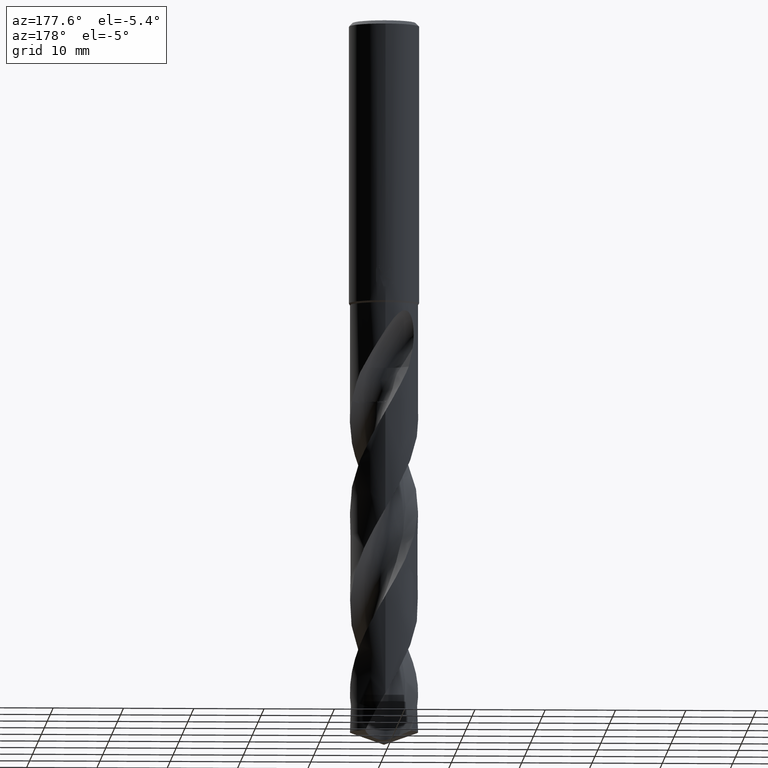
[diagram: clean part render]
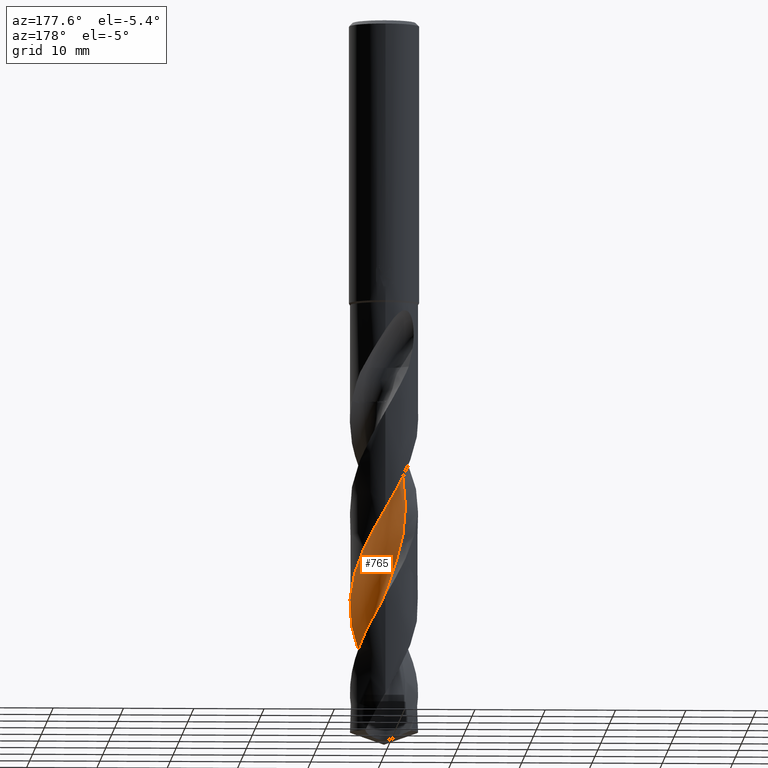
[diagram: same view with one face highlighted and labeled with its STEP entity id]
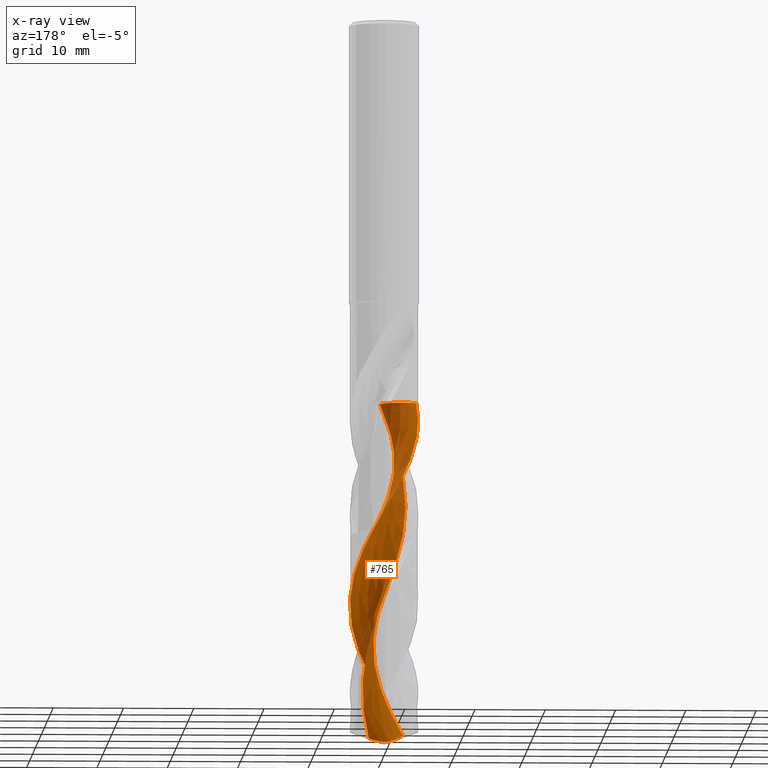
[diagram: x-ray of the same camera — body ghosted, the highlighted face saturated]
A machine part, auxiliary view. The second image highlights one B-rep face of the part: STEP entity #765.
The next image is the same camera in x-ray: the body ghosted, the highlighted face saturated — about 0% of this face is hidden behind the body in this view.
In plain terms, the highlighted face is a freeform B-spline surface patch.
Its self-contained STEP definition (entity closure, byte-faithful):
#321=VERTEX_POINT('',#856);
#407=VERTEX_POINT('',#950);
#427=EDGE_CURVE('',#481,#461,#972,.T.);
#461=VERTEX_POINT('',#1009);
#481=VERTEX_POINT('',#1030);
#499=EDGE_CURVE('',#705,#575,#1048,.T.);
#573=VERTEX_POINT('',#1125);
#575=VERTEX_POINT('',#1127);
#635=EDGE_CURVE('',#575,#407,#1197,.T.);
#685=EDGE_CURVE('',#321,#705,#1253,.T.);
#687=EDGE_CURVE('',#573,#481,#1255,.T.);
#705=VERTEX_POINT('',#1273);
#721=EDGE_CURVE('',#461,#321,#1289,.T.);
#765=ADVANCED_FACE('',(#1336),#1337,.F.);
#777=EDGE_CURVE('',#407,#573,#1352,.T.);
#856=CARTESIAN_POINT('',(4.36354647035595E-011,4.8499330682352,-69.6866281260634));
#950=CARTESIAN_POINT('',(2.07831795744314,-2.24410360733302,-101.886738473812));
#972=B_SPLINE_CURVE_WITH_KNOTS('',3,(#3708,#3709,#3710,#3711,#3712,#3713,#3714,#3715,#3716,#3717,#3718,#3719,#3720,#3721,#3722,#3723,#3724,#3725,#3726,#3727,#3728,#3729,#3730,#3731,#3732,#3733,#3734,#3735,#3736,#3737,#3738,#3739,#3740,#3741,#3742,#3743,#3744,#3745,#3746,#3747,#3748,#3749,#3750,#3751,#3752,#3753,#3754,#3755,#3756,#3757,#3758,#3759,#3760,#3761,#3762,#3763,#3764,#3765,#3766,#3767,#3768,#3769,#3770,#3771),.UNSPECIFIED.,.F.,.F.,(4,2,2,2,2,2,2,2,2,2,2,2,2,2,2,2,2,2,2,2,2,2,2,2,2,2,2,2,2,2,2,4),(0.0,2.90040252042433,5.31146055749715,6.4752690541531,8.67665573470539,10.6455657625195,12.5808202965891,14.75894081664,16.7986885552817,18.0013665914325,20.9247176862017,21.6850119691423,24.3547028853505,26.3002489646326,28.2930419338794,29.6358586611768,32.5888893443668,33.303199384776,35.7198816290192,37.7644214149336,39.2155617115759,39.9027196998456,40.9685792460521,43.3013281196985,46.0613184511586,48.1470624397346,48.5360977661885,50.0008722066698,50.5496956160714,52.4749068375857,53.436250394599,54.3971949387849),.UNSPECIFIED.);
#1009=CARTESIAN_POINT('',(4.22367335326298E-011,-4.84998896798814,-96.0348337779358));
#1030=CARTESIAN_POINT('',(-2.81639565403704,-3.9484700226697,-101.234744363809));
#1048=B_SPLINE_CURVE_WITH_KNOTS('',3,(#4160,#4161,#4162,#4163,#4164,#4165,#4166,#4167,#4168,#4169,#4170,#4171,#4172,#4173,#4174,#4175,#4176,#4177,#4178,#4179),.UNSPECIFIED.,.F.,.F.,(4,2,2,2,2,2,2,2,2,4),(-10.1853622160691,-9.51149955575576,-8.83749216026832,-7.57374283715756,-6.3101576126262,-5.04732691176016,-3.78539908457715,-2.52398885198214,-1.26239469122675,-0.0),.UNSPECIFIED.);
#1125=CARTESIAN_POINT('',(-2.11335856890596E-012,-1.46555414838178,-102.466581913284));
#1127=CARTESIAN_POINT('',(0.482000952143658,-3.00898419171306,-54.105));
#1197=B_SPLINE_CURVE_WITH_KNOTS('',3,(#6101,#6102,#6103,#6104,#6105,#6106,#6107,#6108,#6109,#6110,#6111,#6112,#6113,#6114,#6115,#6116,#6117,#6118,#6119,#6120,#6121,#6122,#6123,#6124,#6125,#6126,#6127,#6128,#6129,#6130,#6131,#6132,#6133,#6134,#6135,#6136,#6137,#6138,#6139,#6140,#6141,#6142,#6143,#6144,#6145,#6146,#6147,#6148,#6149,#6150,#6151,#6152,#6153,#6154,#6155,#6156),.UNSPECIFIED.,.F.,.F.,(4,1,2,1,2,2,2,2,2,1,2,1,2,1,2,1,2,1,2,1,2,1,2,1,2,1,2,1,2,1,2,1,2,2,4),(0.0,1.07822509283286,2.15645018566572,3.23467527849858,4.31290037133144,6.46935055699716,8.62580074266288,10.7822509283286,12.9387011139943,15.09515129966,17.2516014853258,19.4080516709915,21.5645018566572,23.7209520423229,25.8774022279886,28.0338524136544,30.1903025993201,32.3467527849858,34.5032029706515,36.6596531563172,38.816103341983,40.9725535276487,43.1290037133144,45.2854538989801,47.4419040846459,49.5983542703116,51.7548044559773,53.911254641643,56.0677048273087,58.2241550129745,60.3806051986402,62.5370553843059,64.6935055699716,66.8499557556373,69.0064059413031),.UNSPECIFIED.);
#1253=B_SPLINE_CURVE_WITH_KNOTS('',3,(#7123,#7124,#7125,#7126,#7127,#7128,#7129,#7130,#7131,#7132,#7133,#7134,#7135,#7136,#7137,#7138,#7139,#7140,#7141,#7142,#7143,#7144,#7145,#7146,#7147,#7148,#7149,#7150,#7151,#7152,#7153,#7154,#7155,#7156,#7157,#7158,#7159,#7160,#7161,#7162,#7163,#7164,#7165,#7166,#7167,#7168,#7169,#7170,#7171,#7172,#7173,#7174,#7175,#7176,#7177,#7178,#7179,#7180,#7181,#7182,#7183,#7184,#7185,#7186),.UNSPECIFIED.,.F.,.F.,(4,2,2,2,2,2,2,2,2,2,2,2,2,2,2,2,2,2,2,2,2,2,2,2,2,2,2,2,2,2,2,4),(0.0,2.90040252042433,5.31146055749715,6.4752690541531,8.67665573470539,10.6455657625195,12.5808202965891,14.75894081664,16.7986885552817,18.0013665914325,20.9247176862017,21.6850119691423,24.3547028853505,26.3002489646326,28.2930419338794,29.6358586611768,32.5888893443668,33.303199384776,35.7198816290192,37.7644214149336,39.2155617115759,39.9027196998456,40.9685792460521,43.3013281196985,46.0613184511586,48.1470624397346,48.5360977661885,50.0008722066698,50.5496956160714,52.4749068375857,53.436250394599,54.3971949387849),.UNSPECIFIED.);
#1255=B_SPLINE_CURVE_WITH_KNOTS('',3,(#7189,#7190,#7191,#7192,#7193,#7194,#7195,#7196,#7197,#7198,#7199,#7200,#7201,#7202,#7203,#7204,#7205,#7206,#7207,#7208),.UNSPECIFIED.,.F.,.F.,(4,2,2,2,2,2,2,2,2,4),(0.0,1.52930767540913,2.26635176390733,3.39896198355906,4.41587677378758,5.57474016034513,6.834485131939,8.25727712146752,9.8299194854381,11.4444586354832),.UNSPECIFIED.);
#1273=CARTESIAN_POINT('',(-4.65257665380065,-1.36932853162207,-54.105));
#1289=B_SPLINE_CURVE_WITH_KNOTS('',3,(#7427,#7428,#7429,#7430,#7431,#7432,#7433,#7434,#7435,#7436,#7437,#7438,#7439,#7440,#7441,#7442,#7443,#7444,#7445,#7446,#7447,#7448,#7449,#7450,#7451,#7452,#7453,#7454,#7455,#7456,#7457,#7458,#7459,#7460,#7461,#7462,#7463,#7464,#7465,#7466,#7467,#7468,#7469,#7470,#7471,#7472,#7473,#7474,#7475,#7476,#7477,#7478,#7479,#7480,#7481,#7482,#7483,#7484,#7485,#7486,#7487,#7488,#7489,#7490),.UNSPECIFIED.,.F.,.F.,(4,2,2,2,2,2,2,2,2,2,2,2,2,2,2,2,2,2,2,2,2,2,2,2,2,2,2,2,2,2,2,4),(0.0,2.90040252042433,5.31146055749715,6.4752690541531,8.67665573470539,10.6455657625195,12.5808202965891,14.75894081664,16.7986885552817,18.0013665914325,20.9247176862017,21.6850119691423,24.3547028853505,26.3002489646326,28.2930419338794,29.6358586611768,32.5888893443668,33.303199384776,35.7198816290192,37.7644214149336,39.2155617115759,39.9027196998456,40.9685792460521,43.3013281196985,46.0613184511586,48.1470624397346,48.5360977661885,50.0008722066698,50.5496956160714,52.4749068375857,53.436250394599,54.3971949387849),.UNSPECIFIED.);
#1336=FACE_OUTER_BOUND('',#7916,.T.);
#1337=B_SPLINE_SURFACE_WITH_KNOTS('',3,3,((#7917,#7918,#7919,#7920,#7921,#7922,#7923,#7924,#7925,#7926,#7927,#7928,#7929,#7930,#7931,#7932,#7933,#7934,#7935,#7936,#7937,#7938,#7939,#7940,#7941,#7942,#7943,#7944,#7945,#7946,#7947,#7948,#7949,#7950,#7951,#7952,#7953,#7954,#7955,#7956,#7957,#7958,#7959,#7960,#7961,#7962,#7963,#7964,#7965,#7966,#7967,#7968,#7969,#7970,#7971,#7972),(#7973,#7974,#7975,#7976,#7977,#7978,#7979,#7980,#7981,#7982,#7983,#7984,#7985,#7986,#7987,#7988,#7989,#7990,#7991,#7992,#7993,#7994,#7995,#7996,#7997,#7998,#7999,#8000,#8001,#8002,#8003,#8004,#8005,#8006,#8007,#8008,#8009,#8010,#8011,#8012,#8013,#8014,#8015,#8016,#8017,#8018,#8019,#8020,#8021,#8022,#8023,#8024,#8025,#8026,#8027,#8028),(#8029,#8030,#8031,#8032,#8033,#8034,#8035,#8036,#8037,#8038,#8039,#8040,#8041,#8042,#8043,#8044,#8045,#8046,#8047,#8048,#8049,#8050,#8051,#8052,#8053,#8054,#8055,#8056,#8057,#8058,#8059,#8060,#8061,#8062,#8063,#8064,#8065,#8066,#8067,#8068,#8069,#8070,#8071,#8072,#8073,#8074,#8075,#8076,#8077,#8078,#8079,#8080,#8081,#8082,#8083,#8084),(#8085,#8086,#8087,#8088,#8089,#8090,#8091,#8092,#8093,#8094,#8095,#8096,#8097,#8098,#8099,#8100,#8101,#8102,#8103,#8104,#8105,#8106,#8107,#8108,#8109,#8110,#8111,#8112,#8113,#8114,#8115,#8116,#8117,#8118,#8119,#8120,#8121,#8122,#8123,#8124,#8125,#8126,#8127,#8128,#8129,#8130,#8131,#8132,#8133,#8134,#8135,#8136,#8137,#8138,#8139,#8140),(#8141,#8142,#8143,#8144,#8145,#8146,#8147,#8148,#8149,#8150,#8151,#8152,#8153,#8154,#8155,#8156,#8157,#8158,#8159,#8160,#8161,#8162,#8163,#8164,#8165,#8166,#8167,#8168,#8169,#8170,#8171,#8172,#8173,#8174,#8175,#8176,#8177,#8178,#8179,#8180,#8181,#8182,#8183,#8184,#8185,#8186,#8187,#8188,#8189,#8190,#8191,#8192,#8193,#8194,#8195,#8196),(#8197,#8198,#8199,#8200,#8201,#8202,#8203,#8204,#8205,#8206,#8207,#8208,#8209,#8210,#8211,#8212,#8213,#8214,#8215,#8216,#8217,#8218,#8219,#8220,#8221,#8222,#8223,#8224,#8225,#8226,#8227,#8228,#8229,#8230,#8231,#8232,#8233,#8234,#8235,#8236,#8237,#8238,#8239,#8240,#8241,#8242,#8243,#8244,#8245,#8246,#8247,#8248,#8249,#8250,#8251,#8252),(#8253,#8254,#8255,#8256,#8257,#8258,#8259,#8260,#8261,#8262,#8263,#8264,#8265,#8266,#8267,#8268,#8269,#8270,#8271,#8272,#8273,#8274,#8275,#8276,#8277,#8278,#8279,#8280,#8281,#8282,#8283,#8284,#8285,#8286,#8287,#8288,#8289,#8290,#8291,#8292,#8293,#8294,#8295,#8296,#8297,#8298,#8299,#8300,#8301,#8302,#8303,#8304,#8305,#8306,#8307,#8308),(#8309,#8310,#8311,#8312,#8313,#8314,#8315,#8316,#8317,#8318,#8319,#8320,#8321,#8322,#8323,#8324,#8325,#8326,#8327,#8328,#8329,#8330,#8331,#8332,#8333,#8334,#8335,#8336,#8337,#8338,#8339,#8340,#8341,#8342,#8343,#8344,#8345,#8346,#8347,#8348,#8349,#8350,#8351,#8352,#8353,#8354,#8355,#8356,#8357,#8358,#8359,#8360,#8361,#8362,#8363,#8364),(#8365,#8366,#8367,#8368,#8369,#8370,#8371,#8372,#8373,#8374,#8375,#8376,#8377,#8378,#8379,#8380,#8381,#8382,#8383,#8384,#8385,#8386,#8387,#8388,#8389,#8390,#8391,#8392,#8393,#8394,#8395,#8396,#8397,#8398,#8399,#8400,#8401,#8402,#8403,#8404,#8405,#8406,#8407,#8408,#8409,#8410,#8411,#8412,#8413,#8414,#8415,#8416,#8417,#8418,#8419,#8420),(#8421,#8422,#8423,#8424,#8425,#8426,#8427,#8428,#8429,#8430,#8431,#8432,#8433,#8434,#8435,#8436,#8437,#8438,#8439,#8440,#8441,#8442,#8443,#8444,#8445,#8446,#8447,#8448,#8449,#8450,#8451,#8452,#8453,#8454,#8455,#8456,#8457,#8458,#8459,#8460,#8461,#8462,#8463,#8464,#8465,#8466,#8467,#8468,#8469,#8470,#8471,#8472,#8473,#8474,#8475,#8476),(#8477,#8478,#8479,#8480,#8481,#8482,#8483,#8484,#8485,#8486,#8487,#8488,#8489,#8490,#8491,#8492,#8493,#8494,#8495,#8496,#8497,#8498,#8499,#8500,#8501,#8502,#8503,#8504,#8505,#8506,#8507,#8508,#8509,#8510,#8511,#8512,#8513,#8514,#8515,#8516,#8517,#8518,#8519,#8520,#8521,#8522,#8523,#8524,#8525,#8526,#8527,#8528,#8529,#8530,#8531,#8532)),.UNSPECIFIED.,.F.,.F.,.F.,(4,1,1,1,1,1,1,1,4),(4,1,2,1,2,2,2,2,2,1,2,1,2,1,2,1,2,1,2,1,2,1,2,1,2,1,2,1,2,1,2,1,2,2,4),(2.37217478420889E-017,0.392701047908202,0.785402095816403,1.1781031437246,1.57080419163281,1.96350523954101,2.35620628744921,2.74890733535741,3.14160838326561),(0.0,1.07822509283286,2.15645018566572,3.23467527849858,4.31290037133144,6.46935055699716,8.62580074266288,10.7822509283286,12.9387011139943,15.09515129966,17.2516014853258,19.4080516709915,21.5645018566572,23.7209520423229,25.8774022279886,28.0338524136544,30.1903025993201,32.3467527849858,34.5032029706515,36.6596531563172,38.816103341983,40.9725535276487,43.1290037133144,45.2854538989801,47.4419040846459,49.5983542703116,51.7548044559773,53.911254641643,56.0677048273087,58.2241550129745,60.3806051986402,62.5370553843059,64.6935055699716,66.8499557556373,69.0064059413031),.UNSPECIFIED.);
#1352=B_SPLINE_CURVE_WITH_KNOTS('',3,(#8774,#8775,#8776,#8777,#8778,#8779,#8780,#8781,#8782,#8783,#8784,#8785,#8786,#8787,#8788,#8789,#8790,#8791,#8792,#8793),.UNSPECIFIED.,.F.,.F.,(4,2,2,2,2,2,2,2,2,4),(0.0,1.52930767540913,2.26635176390733,3.39896198355906,4.41587677378758,5.57474016034513,6.834485131939,8.25727712146752,9.8299194854381,11.4444586354832),.UNSPECIFIED.);
#3708=CARTESIAN_POINT('',(-2.81639565403702,-3.94847002266972,-101.234744363809));
#3709=CARTESIAN_POINT('',(-2.42410582274116,-4.22828340487573,-100.396581477552));
#3710=CARTESIAN_POINT('',(-1.99043369710045,-4.44929513643982,-99.5613193881162));
#3711=CARTESIAN_POINT('',(-1.14695247236991,-4.72966521939189,-98.0283523077234));
#3712=CARTESIAN_POINT('',(-0.750487143889424,-4.80838575671137,-97.3402969320853));
#3713=CARTESIAN_POINT('',(-0.156399000631382,-4.85134413010504,-96.3072192950594));
#3714=CARTESIAN_POINT('',(0.0375289575621934,-4.85373890907151,-95.9694503519954));
#3715=CARTESIAN_POINT('',(0.599052301368121,-4.82687750856598,-94.9957059891985));
#3716=CARTESIAN_POINT('',(0.963419362745459,-4.76758325160429,-94.3650627746003));
#3717=CARTESIAN_POINT('',(1.63492999229971,-4.57797604350332,-93.1595323842533));
#3718=CARTESIAN_POINT('',(1.94167015509522,-4.45653993673789,-92.5872709987873));
#3719=CARTESIAN_POINT('',(2.52142981198584,-4.15566141384218,-91.4586711334341));
#3720=CARTESIAN_POINT('',(2.79309173498358,-3.97815264938797,-90.9034554394952));
#3721=CARTESIAN_POINT('',(3.32858207479249,-3.54619851673564,-89.7145441331095));
#3722=CARTESIAN_POINT('',(3.58537949866606,-3.28637718157888,-89.0813935724889));
#3723=CARTESIAN_POINT('',(4.02214430652764,-2.73151843141926,-87.8623047105812));
#3724=CARTESIAN_POINT('',(4.20418146603416,-2.44194665050461,-87.2775339230565));
#3725=CARTESIAN_POINT('',(4.44267072555981,-1.95581423466135,-86.3397523780513));
#3726=CARTESIAN_POINT('',(4.51973619656765,-1.77046137352444,-85.990450467907));
#3727=CARTESIAN_POINT('',(4.74434646436398,-1.11884419549322,-84.7968736313116));
#3728=CARTESIAN_POINT('',(4.83266656600226,-0.636365629640148,-83.9655518444562));
#3729=CARTESIAN_POINT('',(4.85156422899588,-0.0225935808301774,-82.8999015667512));
#3730=CARTESIAN_POINT('',(4.85050707475147,0.104064232824463,-82.6794050235301));
#3731=CARTESIAN_POINT('',(4.8232239303736,0.676380571226371,-81.6859276165177));
#3732=CARTESIAN_POINT('',(4.74066464403594,1.1169565196578,-80.9237616754879));
#3733=CARTESIAN_POINT('',(4.49547330883205,1.84896668449828,-79.5885744504537));
#3734=CARTESIAN_POINT('',(4.36132877989862,2.14641966711993,-79.0224874286277));
#3735=CARTESIAN_POINT('',(4.03089691162196,2.71760492852529,-77.8829380661307));
#3736=CARTESIAN_POINT('',(3.83442057614353,2.98836864994378,-77.3108194547218));
#3737=CARTESIAN_POINT('',(3.46205658815341,3.40391053821918,-76.3453251484922));
#3738=CARTESIAN_POINT('',(3.30100712077545,3.56029558066494,-75.9548144392801));
#3739=CARTESIAN_POINT('',(2.75248114472994,4.02360708718391,-74.7115155515885));
#3740=CARTESIAN_POINT('',(2.3295649745578,4.2822291608935,-73.8716393803905));
#3741=CARTESIAN_POINT('',(1.76567159518394,4.51868379688101,-72.810052176274));
#3742=CARTESIAN_POINT('',(1.65423755552281,4.56066694920247,-72.6027898966544));
#3743=CARTESIAN_POINT('',(1.15768805047303,4.72705369765893,-71.6947676083829));
#3744=CARTESIAN_POINT('',(0.759501995463794,4.80720475858604,-71.0022289688838));
#3745=CARTESIAN_POINT('',(0.0135182373499217,4.86201398516744,-69.7102892421074));
#3746=CARTESIAN_POINT('',(-0.329595956051641,4.85083529517765,-69.1147973393787));
#3747=CARTESIAN_POINT('',(-0.90981826149563,4.77003035981298,-68.1024637230547));
#3748=CARTESIAN_POINT('',(-1.14795782899191,4.71839946608946,-67.6840659805004));
#3749=CARTESIAN_POINT('',(-1.49189711319274,4.61620349386445,-67.0651691031262));
#3750=CARTESIAN_POINT('',(-1.60108714216359,4.57946989999759,-66.8664047619205));
#3751=CARTESIAN_POINT('',(-1.87572421672101,4.47607821404483,-66.3586160073391));
#3752=CARTESIAN_POINT('',(-2.03873310406459,4.40419858316428,-66.0486861927634));
#3753=CARTESIAN_POINT('',(-2.54421830170521,4.14730974349365,-65.0652037523039));
#3754=CARTESIAN_POINT('',(-2.86914584220948,3.92964974890002,-64.3976637667045));
#3755=CARTESIAN_POINT('',(-3.51493191961692,3.37347084653305,-62.9263441376533));
#3756=CARTESIAN_POINT('',(-3.81999419653899,3.02374655586787,-62.1248674276389));
#3757=CARTESIAN_POINT('',(-4.26107226286516,2.34242913327083,-60.725241609759));
#3758=CARTESIAN_POINT('',(-4.41826675405035,2.03015777840372,-60.1277382665809));
#3759=CARTESIAN_POINT('',(-4.5633040654101,1.64380771711781,-59.4119141645855));
#3760=CARTESIAN_POINT('',(-4.5848660872353,1.58267382877016,-59.2992806562151));
#3761=CARTESIAN_POINT('',(-4.68190505680341,1.28886196644472,-58.7625933826118));
#3762=CARTESIAN_POINT('',(-4.74097898830397,1.05105656124122,-58.3404257065435));
#3763=CARTESIAN_POINT('',(-4.79717889670398,0.719097271736582,-57.7579102135472));
#3764=CARTESIAN_POINT('',(-4.80992816521659,0.628190012925675,-57.5990124909081));
#3765=CARTESIAN_POINT('',(-4.85574832266699,0.216851307081744,-56.8832508375526));
#3766=CARTESIAN_POINT('',(-4.85944311687564,-0.106124710085491,-56.3283608563384));
#3767=CARTESIAN_POINT('',(-4.81687961362285,-0.587477591470273,-55.493336772947));
#3768=CARTESIAN_POINT('',(-4.79475127775018,-0.746780465780921,-55.2158467610929));
#3769=CARTESIAN_POINT('',(-4.73488838853714,-1.06212993023568,-54.6593020864443));
#3770=CARTESIAN_POINT('',(-4.69745570823673,-1.21686103202837,-54.3812163204034));
#3771=CARTESIAN_POINT('',(-4.65253701763839,-1.36946318219174,-54.1047560551863));
#4160=CARTESIAN_POINT('',(-5.73843560564096,-4.76936971360772,-54.105));
#4161=CARTESIAN_POINT('',(-5.79952427527084,-4.55321346547503,-54.105));
#4162=CARTESIAN_POINT('',(-5.83791090640233,-4.33127612633341,-54.105));
#4163=CARTESIAN_POINT('',(-5.86805751493917,-3.88299426039519,-54.105));
#4164=CARTESIAN_POINT('',(-5.8597256500573,-3.65786626326293,-54.105));
#4165=CARTESIAN_POINT('',(-5.7688914665986,-3.01835880358986,-54.105));
#4166=CARTESIAN_POINT('',(-5.62873680002431,-2.61683960239331,-54.105));
#4167=CARTESIAN_POINT('',(-5.20247348532666,-1.89017856968947,-54.105));
#4168=CARTESIAN_POINT('',(-4.92044201255783,-1.57194497109978,-54.105));
#4169=CARTESIAN_POINT('',(-4.25050154164767,-1.06165477662584,-54.105));
#4170=CARTESIAN_POINT('',(-3.86903520331092,-0.874382480962529,-54.105));
#4171=CARTESIAN_POINT('',(-3.05609035878673,-0.656682991550306,-54.105));
#4172=CARTESIAN_POINT('',(-2.63240976505963,-0.628223400889141,-54.105));
#4173=CARTESIAN_POINT('',(-1.79814657164991,-0.73530088632336,-54.105));
#4174=CARTESIAN_POINT('',(-1.39555155029537,-0.869745947855435,-54.105));
#4175=CARTESIAN_POINT('',(-0.664483500688869,-1.28544467578099,-54.105));
#4176=CARTESIAN_POINT('',(-0.343041568580962,-1.56272819435498,-54.105));
#4177=CARTESIAN_POINT('',(0.175643678290239,-2.22513868721029,-54.105));
#4178=CARTESIAN_POINT('',(0.367827139847141,-2.60397123969677,-54.105));
#4179=CARTESIAN_POINT('',(0.48200095214369,-3.00898419171306,-54.105));
#6101=CARTESIAN_POINT('',(2.28631192340877,-2.40202140659123,-49.3382));
#6102=CARTESIAN_POINT('',(2.06172972771487,-2.38990732810187,-49.6173854099833));
#6103=CARTESIAN_POINT('',(1.70412901275722,-2.4115253481473,-50.1739243427249));
#6104=CARTESIAN_POINT('',(1.52907645968286,-2.51664160072461,-50.7300515266488));
#6105=CARTESIAN_POINT('',(1.43056464295683,-2.67411332075524,-51.2916298786982));
#6106=CARTESIAN_POINT('',(1.29501879574358,-2.80653545445513,-51.8540034949147));
#6107=CARTESIAN_POINT('',(1.10362678400599,-2.88165803880479,-52.4139323108157));
#6108=CARTESIAN_POINT('',(0.789455073949653,-2.95280623126884,-53.2497399864559));
#6109=CARTESIAN_POINT('',(0.586595636807097,-2.9918660984346,-53.8074360857959));
#6110=CARTESIAN_POINT('',(0.191418812596139,-3.05808415874927,-54.9271857326849));
#6111=CARTESIAN_POINT('',(-0.0139879148122995,-3.06325280092281,-55.4867023395849));
#6112=CARTESIAN_POINT('',(-0.420627107720816,-3.03299908676787,-56.6041148105278));
#6113=CARTESIAN_POINT('',(-0.622761248658853,-2.99558888260726,-57.1630280618277));
#6114=CARTESIAN_POINT('',(-1.01475700311597,-2.88845220695974,-58.2814147975088));
#6115=CARTESIAN_POINT('',(-1.20542656999575,-2.81283527232702,-58.840436514483));
#6116=CARTESIAN_POINT('',(-1.5684939132911,-2.63433032936762,-59.9584242151799));
#6117=CARTESIAN_POINT('',(-1.91214374343206,-2.40660847073051,-61.076770135101));
#6118=CARTESIAN_POINT('',(-2.20367594266878,-2.11788631759453,-62.1944107277307));
#6119=CARTESIAN_POINT('',(-2.4700420896024,-1.81508954480338,-63.3125803780605));
#6120=CARTESIAN_POINT('',(-2.69901336180192,-1.47310039121784,-64.4311452111507));
#6121=CARTESIAN_POINT('',(-2.85501767944361,-1.09337163723509,-65.5488468027999));
#6122=CARTESIAN_POINT('',(-2.98191824325487,-0.710242793152766,-66.6669092395531));
#6123=CARTESIAN_POINT('',(-3.05936325311529,-0.305903737884912,-67.7853813979341));
#6124=CARTESIAN_POINT('',(-3.05530425479042,0.104525378398919,-68.9030691512278));
#6125=CARTESIAN_POINT('',(-3.02314976088953,0.506776800706472,-70.0211713604414));
#6126=CARTESIAN_POINT('',(-2.93709869064373,0.909358857208409,-71.139673456081));
#6127=CARTESIAN_POINT('',(-2.77352782683073,1.28583038796191,-72.257363625412));
#6128=CARTESIAN_POINT('',(-2.58728458442833,1.64382518843336,-73.3754538935459));
#6129=CARTESIAN_POINT('',(-2.35128759355534,1.98113821125909,-74.4939478410089));
#6130=CARTESIAN_POINT('',(-2.05405686101404,2.26422066257428,-75.6116377692328));
#6131=CARTESIAN_POINT('',(-1.74312463466448,2.52145234508615,-76.7297310339881));
#6132=CARTESIAN_POINT('',(-1.39441520734961,2.74026258100375,-77.848226946097));
#6133=CARTESIAN_POINT('',(-1.01042145040257,2.88528308975904,-78.9659170997134));
#6134=CARTESIAN_POINT('',(-0.623874942026818,3.00116156715907,-80.0840100574057));
#6135=CARTESIAN_POINT('',(-0.217489661349504,3.06694049208428,-81.2025052641756));
#6136=CARTESIAN_POINT('',(0.192667243152479,3.05101208373293,-82.3201941967231));
#6137=CARTESIAN_POINT('',(0.593828734207096,3.00724742469691,-83.4382858775404));
#6138=CARTESIAN_POINT('',(0.993756310165731,2.90961696055165,-84.5567827749911));
#6139=CARTESIAN_POINT('',(1.36534822709023,2.73525395921047,-85.674476806988));
#6140=CARTESIAN_POINT('',(1.71781671304583,2.53874448582395,-86.7925736348374));
#6141=CARTESIAN_POINT('',(2.04817545183122,2.29309605859573,-87.9110637672858));
#6142=CARTESIAN_POINT('',(2.32256698175985,1.98784247378461,-89.0287398733018));
#6143=CARTESIAN_POINT('',(2.57074085066972,1.66966993431593,-90.1468209262287));
#6144=CARTESIAN_POINT('',(2.77940405452756,1.31481010412667,-91.265338162457));
#6145=CARTESIAN_POINT('',(2.91317573027932,0.926672954393396,-92.3830703789068));
#6146=CARTESIAN_POINT('',(3.01764738902059,0.536766161250374,-93.5011895386873));
#6147=CARTESIAN_POINT('',(3.07167296677866,0.128658496021743,-94.6196036290882));
#6148=CARTESIAN_POINT('',(3.04457252739207,-0.280569834905519,-95.7371942450614));
#6149=CARTESIAN_POINT('',(2.99023230532806,-0.679998616017667,-96.8552833576234));
#6150=CARTESIAN_POINT('',(2.88084672806209,-1.07705145994221,-97.9740882919968));
#6151=CARTESIAN_POINT('',(2.69304736686858,-1.4435031269573,-99.0920196988239));
#6152=CARTESIAN_POINT('',(2.48296083619462,-1.78975104790537,-100.20997209505));
#6153=CARTESIAN_POINT('',(2.3581501602287,-1.95158663990122,-100.768634644092));
#6154=CARTESIAN_POINT('',(2.0871232396022,-2.25004563326122,-101.885754271527));
#6155=CARTESIAN_POINT('',(1.92456745425586,-2.38090214691885,-102.444853244124));
#6156=CARTESIAN_POINT('',(1.74587524007319,-2.49096131496636,-103.003406681383));
#7123=CARTESIAN_POINT('',(-2.81639565403702,-3.94847002266972,-101.234744363809));
#7124=CARTESIAN_POINT('',(-2.42410582274116,-4.22828340487573,-100.396581477552));
#7125=CARTESIAN_POINT('',(-1.99043369710045,-4.44929513643982,-99.5613193881162));
#7126=CARTESIAN_POINT('',(-1.14695247236991,-4.72966521939189,-98.0283523077234));
#7127=CARTESIAN_POINT('',(-0.750487143889424,-4.80838575671137,-97.3402969320853));
#7128=CARTESIAN_POINT('',(-0.156399000631382,-4.85134413010504,-96.3072192950594));
#7129=CARTESIAN_POINT('',(0.0375289575621934,-4.85373890907151,-95.9694503519954));
#7130=CARTESIAN_POINT('',(0.599052301368121,-4.82687750856598,-94.9957059891985));
#7131=CARTESIAN_POINT('',(0.963419362745459,-4.76758325160429,-94.3650627746003));
#7132=CARTESIAN_POINT('',(1.63492999229971,-4.57797604350332,-93.1595323842533));
#7133=CARTESIAN_POINT('',(1.94167015509522,-4.45653993673789,-92.5872709987873));
#7134=CARTESIAN_POINT('',(2.52142981198584,-4.15566141384218,-91.4586711334341));
#7135=CARTESIAN_POINT('',(2.79309173498358,-3.97815264938797,-90.9034554394952));
#7136=CARTESIAN_POINT('',(3.32858207479249,-3.54619851673564,-89.7145441331095));
#7137=CARTESIAN_POINT('',(3.58537949866606,-3.28637718157888,-89.0813935724889));
#7138=CARTESIAN_POINT('',(4.02214430652764,-2.73151843141926,-87.8623047105812));
#7139=CARTESIAN_POINT('',(4.20418146603416,-2.44194665050461,-87.2775339230565));
#7140=CARTESIAN_POINT('',(4.44267072555981,-1.95581423466135,-86.3397523780513));
#7141=CARTESIAN_POINT('',(4.51973619656765,-1.77046137352444,-85.990450467907));
#7142=CARTESIAN_POINT('',(4.74434646436398,-1.11884419549322,-84.7968736313116));
#7143=CARTESIAN_POINT('',(4.83266656600226,-0.636365629640148,-83.9655518444562));
#7144=CARTESIAN_POINT('',(4.85156422899588,-0.0225935808301774,-82.8999015667512));
#7145=CARTESIAN_POINT('',(4.85050707475147,0.104064232824463,-82.6794050235301));
#7146=CARTESIAN_POINT('',(4.8232239303736,0.676380571226371,-81.6859276165177));
#7147=CARTESIAN_POINT('',(4.74066464403594,1.1169565196578,-80.9237616754879));
#7148=CARTESIAN_POINT('',(4.49547330883205,1.84896668449828,-79.5885744504537));
#7149=CARTESIAN_POINT('',(4.36132877989862,2.14641966711993,-79.0224874286277));
#7150=CARTESIAN_POINT('',(4.03089691162196,2.71760492852529,-77.8829380661307));
#7151=CARTESIAN_POINT('',(3.83442057614353,2.98836864994378,-77.3108194547218));
#7152=CARTESIAN_POINT('',(3.46205658815341,3.40391053821918,-76.3453251484922));
#7153=CARTESIAN_POINT('',(3.30100712077545,3.56029558066494,-75.9548144392801));
#7154=CARTESIAN_POINT('',(2.75248114472994,4.02360708718391,-74.7115155515885));
#7155=CARTESIAN_POINT('',(2.3295649745578,4.2822291608935,-73.8716393803905));
#7156=CARTESIAN_POINT('',(1.76567159518394,4.51868379688101,-72.810052176274));
#7157=CARTESIAN_POINT('',(1.65423755552281,4.56066694920247,-72.6027898966544));
#7158=CARTESIAN_POINT('',(1.15768805047303,4.72705369765893,-71.6947676083829));
#7159=CARTESIAN_POINT('',(0.759501995463794,4.80720475858604,-71.0022289688838));
#7160=CARTESIAN_POINT('',(0.0135182373499217,4.86201398516744,-69.7102892421074));
#7161=CARTESIAN_POINT('',(-0.329595956051641,4.85083529517765,-69.1147973393787));
#7162=CARTESIAN_POINT('',(-0.90981826149563,4.77003035981298,-68.1024637230547));
#7163=CARTESIAN_POINT('',(-1.14795782899191,4.71839946608946,-67.6840659805004));
#7164=CARTESIAN_POINT('',(-1.49189711319274,4.61620349386445,-67.0651691031262));
#7165=CARTESIAN_POINT('',(-1.60108714216359,4.57946989999759,-66.8664047619205));
#7166=CARTESIAN_POINT('',(-1.87572421672101,4.47607821404483,-66.3586160073391));
#7167=CARTESIAN_POINT('',(-2.03873310406459,4.40419858316428,-66.0486861927634));
#7168=CARTESIAN_POINT('',(-2.54421830170521,4.14730974349365,-65.0652037523039));
#7169=CARTESIAN_POINT('',(-2.86914584220948,3.92964974890002,-64.3976637667045));
#7170=CARTESIAN_POINT('',(-3.51493191961692,3.37347084653305,-62.9263441376533));
#7171=CARTESIAN_POINT('',(-3.81999419653899,3.02374655586787,-62.1248674276389));
#7172=CARTESIAN_POINT('',(-4.26107226286516,2.34242913327083,-60.725241609759));
#7173=CARTESIAN_POINT('',(-4.41826675405035,2.03015777840372,-60.1277382665809));
#7174=CARTESIAN_POINT('',(-4.5633040654101,1.64380771711781,-59.4119141645855));
#7175=CARTESIAN_POINT('',(-4.5848660872353,1.58267382877016,-59.2992806562151));
#7176=CARTESIAN_POINT('',(-4.68190505680341,1.28886196644472,-58.7625933826118));
#7177=CARTESIAN_POINT('',(-4.74097898830397,1.05105656124122,-58.3404257065435));
#7178=CARTESIAN_POINT('',(-4.79717889670398,0.719097271736582,-57.7579102135472));
#7179=CARTESIAN_POINT('',(-4.80992816521659,0.628190012925675,-57.5990124909081));
#7180=CARTESIAN_POINT('',(-4.85574832266699,0.216851307081744,-56.8832508375526));
#7181=CARTESIAN_POINT('',(-4.85944311687564,-0.106124710085491,-56.3283608563384));
#7182=CARTESIAN_POINT('',(-4.81687961362285,-0.587477591470273,-55.493336772947));
#7183=CARTESIAN_POINT('',(-4.79475127775018,-0.746780465780921,-55.2158467610929));
#7184=CARTESIAN_POINT('',(-4.73488838853714,-1.06212993023568,-54.6593020864443));
#7185=CARTESIAN_POINT('',(-4.69745570823673,-1.21686103202837,-54.3812163204034));
#7186=CARTESIAN_POINT('',(-4.65253701763839,-1.36946318219174,-54.1047560551863));
#7189=CARTESIAN_POINT('',(2.07831795744257,-2.24410360733321,-101.886738473813));
#7190=CARTESIAN_POINT('',(1.67712991622365,-1.97943721784345,-102.056634091041));
#7191=CARTESIAN_POINT('',(1.2663440412434,-1.79402266556544,-102.20656000935));
#7192=CARTESIAN_POINT('',(0.722901810494224,-1.61134493266241,-102.358877230644));
#7193=CARTESIAN_POINT('',(0.537144982272704,-1.55990325924317,-102.402868074184));
#7194=CARTESIAN_POINT('',(0.0620952290622131,-1.46222142260788,-102.476267990216));
#7195=CARTESIAN_POINT('',(-0.220107904612305,-1.43274826350231,-102.481652800038));
#7196=CARTESIAN_POINT('',(-0.77636142934178,-1.46747681309472,-102.402228176714));
#7197=CARTESIAN_POINT('',(-1.02781880936229,-1.52380679030232,-102.332593492383));
#7198=CARTESIAN_POINT('',(-1.53151672878886,-1.72963469783931,-102.16078215005));
#7199=CARTESIAN_POINT('',(-1.78820868340694,-1.89448654740017,-102.051813549074));
#7200=CARTESIAN_POINT('',(-2.26329624020281,-2.36123495953904,-101.809544405619));
#7201=CARTESIAN_POINT('',(-2.45683763898788,-2.65452621318692,-101.684132497852));
#7202=CARTESIAN_POINT('',(-2.74483919803982,-3.34125173706262,-101.426792161797));
#7203=CARTESIAN_POINT('',(-2.82102553778801,-3.73657260564209,-101.297894075546));
#7204=CARTESIAN_POINT('',(-2.82480297834689,-4.58191804085779,-101.0429448679));
#7205=CARTESIAN_POINT('',(-2.73604899009545,-5.02605320163498,-100.920653597003));
#7206=CARTESIAN_POINT('',(-2.3949825674992,-5.87354121743379,-100.694621813817));
#7207=CARTESIAN_POINT('',(-2.14046410271998,-6.27049069849684,-100.592805493691));
#7208=CARTESIAN_POINT('',(-1.82056942258768,-6.61290609169214,-100.503551538243));
#7427=CARTESIAN_POINT('',(-2.81639565403702,-3.94847002266972,-101.234744363809));
#7428=CARTESIAN_POINT('',(-2.42410582274116,-4.22828340487573,-100.396581477552));
#7429=CARTESIAN_POINT('',(-1.99043369710045,-4.44929513643982,-99.5613193881162));
#7430=CARTESIAN_POINT('',(-1.14695247236991,-4.72966521939189,-98.0283523077234));
#7431=CARTESIAN_POINT('',(-0.750487143889424,-4.80838575671137,-97.3402969320853));
#7432=CARTESIAN_POINT('',(-0.156399000631382,-4.85134413010504,-96.3072192950594));
#7433=CARTESIAN_POINT('',(0.0375289575621934,-4.85373890907151,-95.9694503519954));
#7434=CARTESIAN_POINT('',(0.599052301368121,-4.82687750856598,-94.9957059891985));
#7435=CARTESIAN_POINT('',(0.963419362745459,-4.76758325160429,-94.3650627746003));
#7436=CARTESIAN_POINT('',(1.63492999229971,-4.57797604350332,-93.1595323842533));
#7437=CARTESIAN_POINT('',(1.94167015509522,-4.45653993673789,-92.5872709987873));
#7438=CARTESIAN_POINT('',(2.52142981198584,-4.15566141384218,-91.4586711334341));
#7439=CARTESIAN_POINT('',(2.79309173498358,-3.97815264938797,-90.9034554394952));
#7440=CARTESIAN_POINT('',(3.32858207479249,-3.54619851673564,-89.7145441331095));
#7441=CARTESIAN_POINT('',(3.58537949866606,-3.28637718157888,-89.0813935724889));
#7442=CARTESIAN_POINT('',(4.02214430652764,-2.73151843141926,-87.8623047105812));
#7443=CARTESIAN_POINT('',(4.20418146603416,-2.44194665050461,-87.2775339230565));
#7444=CARTESIAN_POINT('',(4.44267072555981,-1.95581423466135,-86.3397523780513));
#7445=CARTESIAN_POINT('',(4.51973619656765,-1.77046137352444,-85.990450467907));
#7446=CARTESIAN_POINT('',(4.74434646436398,-1.11884419549322,-84.7968736313116));
#7447=CARTESIAN_POINT('',(4.83266656600226,-0.636365629640148,-83.9655518444562));
#7448=CARTESIAN_POINT('',(4.85156422899588,-0.0225935808301774,-82.8999015667512));
#7449=CARTESIAN_POINT('',(4.85050707475147,0.104064232824463,-82.6794050235301));
#7450=CARTESIAN_POINT('',(4.8232239303736,0.676380571226371,-81.6859276165177));
#7451=CARTESIAN_POINT('',(4.74066464403594,1.1169565196578,-80.9237616754879));
#7452=CARTESIAN_POINT('',(4.49547330883205,1.84896668449828,-79.5885744504537));
#7453=CARTESIAN_POINT('',(4.36132877989862,2.14641966711993,-79.0224874286277));
#7454=CARTESIAN_POINT('',(4.03089691162196,2.71760492852529,-77.8829380661307));
#7455=CARTESIAN_POINT('',(3.83442057614353,2.98836864994378,-77.3108194547218));
#7456=CARTESIAN_POINT('',(3.46205658815341,3.40391053821918,-76.3453251484922));
#7457=CARTESIAN_POINT('',(3.30100712077545,3.56029558066494,-75.9548144392801));
#7458=CARTESIAN_POINT('',(2.75248114472994,4.02360708718391,-74.7115155515885));
#7459=CARTESIAN_POINT('',(2.3295649745578,4.2822291608935,-73.8716393803905));
#7460=CARTESIAN_POINT('',(1.76567159518394,4.51868379688101,-72.810052176274));
#7461=CARTESIAN_POINT('',(1.65423755552281,4.56066694920247,-72.6027898966544));
#7462=CARTESIAN_POINT('',(1.15768805047303,4.72705369765893,-71.6947676083829));
#7463=CARTESIAN_POINT('',(0.759501995463794,4.80720475858604,-71.0022289688838));
#7464=CARTESIAN_POINT('',(0.0135182373499217,4.86201398516744,-69.7102892421074));
#7465=CARTESIAN_POINT('',(-0.329595956051641,4.85083529517765,-69.1147973393787));
#7466=CARTESIAN_POINT('',(-0.90981826149563,4.77003035981298,-68.1024637230547));
#7467=CARTESIAN_POINT('',(-1.14795782899191,4.71839946608946,-67.6840659805004));
#7468=CARTESIAN_POINT('',(-1.49189711319274,4.61620349386445,-67.0651691031262));
#7469=CARTESIAN_POINT('',(-1.60108714216359,4.57946989999759,-66.8664047619205));
#7470=CARTESIAN_POINT('',(-1.87572421672101,4.47607821404483,-66.3586160073391));
#7471=CARTESIAN_POINT('',(-2.03873310406459,4.40419858316428,-66.0486861927634));
#7472=CARTESIAN_POINT('',(-2.54421830170521,4.14730974349365,-65.0652037523039));
#7473=CARTESIAN_POINT('',(-2.86914584220948,3.92964974890002,-64.3976637667045));
#7474=CARTESIAN_POINT('',(-3.51493191961692,3.37347084653305,-62.9263441376533));
#7475=CARTESIAN_POINT('',(-3.81999419653899,3.02374655586787,-62.1248674276389));
#7476=CARTESIAN_POINT('',(-4.26107226286516,2.34242913327083,-60.725241609759));
#7477=CARTESIAN_POINT('',(-4.41826675405035,2.03015777840372,-60.1277382665809));
#7478=CARTESIAN_POINT('',(-4.5633040654101,1.64380771711781,-59.4119141645855));
#7479=CARTESIAN_POINT('',(-4.5848660872353,1.58267382877016,-59.2992806562151));
#7480=CARTESIAN_POINT('',(-4.68190505680341,1.28886196644472,-58.7625933826118));
#7481=CARTESIAN_POINT('',(-4.74097898830397,1.05105656124122,-58.3404257065435));
#7482=CARTESIAN_POINT('',(-4.79717889670398,0.719097271736582,-57.7579102135472));
#7483=CARTESIAN_POINT('',(-4.80992816521659,0.628190012925675,-57.5990124909081));
#7484=CARTESIAN_POINT('',(-4.85574832266699,0.216851307081744,-56.8832508375526));
#7485=CARTESIAN_POINT('',(-4.85944311687564,-0.106124710085491,-56.3283608563384));
#7486=CARTESIAN_POINT('',(-4.81687961362285,-0.587477591470273,-55.493336772947));
#7487=CARTESIAN_POINT('',(-4.79475127775018,-0.746780465780921,-55.2158467610929));
#7488=CARTESIAN_POINT('',(-4.73488838853714,-1.06212993023568,-54.6593020864443));
#7489=CARTESIAN_POINT('',(-4.69745570823673,-1.21686103202837,-54.3812163204034));
#7490=CARTESIAN_POINT('',(-4.65253701763839,-1.36946318219174,-54.1047560551863));
#7916=EDGE_LOOP('',(#9306,#9307,#9308,#9309,#9310,#9311,#9312));
#7917=CARTESIAN_POINT('',(-2.28631192340877,-6.97464525340877,-49.3382));
#7918=CARTESIAN_POINT('',(-2.51236815305428,-6.96105714083213,-49.6173484118515));
#7919=CARTESIAN_POINT('',(-2.96958818007833,-6.8861278149577,-50.1789949223702));
#7920=CARTESIAN_POINT('',(-3.42262510634524,-6.68484244709052,-50.7420555502863));
#7921=CARTESIAN_POINT('',(-3.85705326648891,-6.40699369939393,-51.298676076515));
#7922=CARTESIAN_POINT('',(-4.27524025703479,-6.1162597979647,-51.8540589228112));
#7923=CARTESIAN_POINT('',(-4.66671741618364,-5.80757783032569,-52.4119178302457));
#7924=CARTESIAN_POINT('',(-5.23583027222805,-5.33483362603612,-53.2534115456945));
#7925=CARTESIAN_POINT('',(-5.58318547451923,-4.9783651880349,-53.8140458492012));
#7926=CARTESIAN_POINT('',(-6.19097926384375,-4.18828411656064,-54.9303454087416));
#7927=CARTESIAN_POINT('',(-6.456830874956,-3.76524300465941,-55.488845316414));
#7928=CARTESIAN_POINT('',(-6.89967003160762,-2.87501562914695,-56.6076828887111));
#7929=CARTESIAN_POINT('',(-7.07723060787426,-2.40868071707757,-57.16688377529));
#7930=CARTESIAN_POINT('',(-7.33368700583093,-1.4477190878151,-58.2846525455767));
#7931=CARTESIAN_POINT('',(-7.41471134623596,-0.954866706259917,-58.8437252117725));
#7932=CARTESIAN_POINT('',(-7.47276324578259,0.039022257379429,-59.9619341033315));
#7933=CARTESIAN_POINT('',(-7.43574053592982,1.03613008315948,-61.0797440243421));
#7934=CARTESIAN_POINT('',(-7.20297769228275,2.00715019092933,-62.1983429847276));
#7935=CARTESIAN_POINT('',(-6.86859222052171,2.94533575017154,-63.3163504581661));
#7936=CARTESIAN_POINT('',(-6.44547556015633,3.84929825545023,-64.4339160297187));
#7937=CARTESIAN_POINT('',(-5.85284272227814,4.65307319420164,-65.55244589123));
#7938=CARTESIAN_POINT('',(-5.17973834308133,5.38714324061132,-66.6705726531157));
#7939=CARTESIAN_POINT('',(-4.43818510724439,6.05511657746038,-67.7882417033861));
#7940=CARTESIAN_POINT('',(-3.57940516616426,6.56470792457755,-68.9067872804399));
#7941=CARTESIAN_POINT('',(-2.67360282499226,6.97874746506615,-70.0248697455395));
#7942=CARTESIAN_POINT('',(-1.73048787495925,7.30528028448947,-71.142505378016));
#7943=CARTESIAN_POINT('',(-0.741055822415224,7.44031619579547,-72.2610481840891));
#7944=CARTESIAN_POINT('',(0.254483079116577,7.4690240187929,-73.3791439261861));
#7945=CARTESIAN_POINT('',(1.2503152948694,7.40259500386055,-74.4967886040335));
#7946=CARTESIAN_POINT('',(2.21424477463587,7.14174420684516,-75.6153317119955));
#7947=CARTESIAN_POINT('',(3.14240304668564,6.78058382447533,-76.7334242242116));
#7948=CARTESIAN_POINT('',(4.0337933640943,6.33168041486243,-77.8510669104779));
#7949=CARTESIAN_POINT('',(4.82010383599921,5.71611544505709,-78.9696097075885));
#7950=CARTESIAN_POINT('',(5.53440964754166,5.02208085223106,-80.087702155348));
#7951=CARTESIAN_POINT('',(6.18068631060821,4.26154263885121,-81.2053448738964));
#7952=CARTESIAN_POINT('',(6.66528650796852,3.38840731620772,-82.323889239139));
#7953=CARTESIAN_POINT('',(7.05301234584327,2.471029526734,-83.4419846261627));
#7954=CARTESIAN_POINT('',(7.35218298501857,1.5188817900944,-84.5596282759165));
#7955=CARTESIAN_POINT('',(7.45859741976307,0.525967507873857,-85.6781661909102));
#7956=CARTESIAN_POINT('',(7.45856020367029,-0.469983404565248,-86.796250191784));
#7957=CARTESIAN_POINT('',(7.36342036453382,-1.46348649132193,-87.9138908846635));
#7958=CARTESIAN_POINT('',(7.0748424457993,-2.41948587308934,-89.0324516952036));
#7959=CARTESIAN_POINT('',(6.6870097205513,-3.33682009509605,-90.1505744545458));
#7960=CARTESIAN_POINT('',(6.21254605256315,-4.21485223903094,-91.268224258007));
#7961=CARTESIAN_POINT('',(5.57461364877442,-4.98308479351294,-92.3867125368669));
#7962=CARTESIAN_POINT('',(4.86038095127391,-5.67715122042912,-93.5047153755811));
#7963=CARTESIAN_POINT('',(4.08152457890235,-6.30131209949657,-94.6223355948996));
#7964=CARTESIAN_POINT('',(3.19447367703047,-6.76029071365085,-95.7410313065543));
#7965=CARTESIAN_POINT('',(2.26586672002682,-7.12084422825337,-96.8593785197871));
#7966=CARTESIAN_POINT('',(1.30548102642355,-7.39207271189599,-97.9771343647765));
#7967=CARTESIAN_POINT('',(0.310563420404254,-7.47096034578018,-99.0954453142257));
#7968=CARTESIAN_POINT('',(-0.68421939505212,-7.44442956183706,-100.213103308531));
#7969=CARTESIAN_POINT('',(-1.17988336145823,-7.38214505548059,-100.771968069833));
#7970=CARTESIAN_POINT('',(-2.14916770015435,-7.15539241767202,-101.889743474635));
#7971=CARTESIAN_POINT('',(-2.6210242709234,-6.99877187926686,-102.447936930858));
#7972=CARTESIAN_POINT('',(-3.07409017169418,-6.80207482971695,-103.006780295153));
#7973=CARTESIAN_POINT('',(-2.58557834224641,-6.67535361423046,-49.3382000000003));
#7974=CARTESIAN_POINT('',(-2.81153809464075,-6.66166903067053,-49.6173456968165));
#7975=CARTESIAN_POINT('',(-3.26243890606972,-6.58021987806652,-50.1793667980503));
#7976=CARTESIAN_POINT('',(-3.69541959713808,-6.3607403690266,-50.7429359222206));
#7977=CARTESIAN_POINT('',(-4.10135591085703,-6.06090766974725,-51.29919284264));
#7978=CARTESIAN_POINT('',(-4.4918471221814,-5.75167634074202,-51.8540629882281));
#7979=CARTESIAN_POINT('',(-4.85820346050256,-5.4298997198982,-52.4117700881969));
#7980=CARTESIAN_POINT('',(-5.39171777156743,-4.94047109158672,-53.2536808180344));
#7981=CARTESIAN_POINT('',(-5.71318471119178,-4.57454637890682,-53.8145306124032));
#7982=CARTESIAN_POINT('',(-6.26493336791716,-3.77055194105634,-54.9305771335729));
#7983=CARTESIAN_POINT('',(-6.50275844192629,-3.3435558765029,-55.4890024742874));
#7984=CARTESIAN_POINT('',(-6.88931198007631,-2.45096158351415,-56.6079445780576));
#7985=CARTESIAN_POINT('',(-7.03879940302659,-1.98623622148461,-57.1671665729187));
#7986=CARTESIAN_POINT('',(-7.23937323204045,-1.03414803396464,-58.2848899804906));
#7987=CARTESIAN_POINT('',(-7.2930897413164,-0.548473101325926,-58.8439664085223));
#7988=CARTESIAN_POINT('',(-7.29777544901148,0.425450267391684,-59.9621915129897));
#7989=CARTESIAN_POINT('',(-7.21039738121561,1.39764090718391,-61.0799621375682));
#7990=CARTESIAN_POINT('',(-6.93297943121336,2.33434385734821,-62.1986313619702));
#7991=CARTESIAN_POINT('',(-6.55700932038616,3.23320836695988,-63.3166269682283));
#7992=CARTESIAN_POINT('',(-6.09711327230833,4.09449010718943,-64.4341192246989));
#7993=CARTESIAN_POINT('',(-5.47672858410312,4.84926538141078,-65.5527098661835));
#7994=CARTESIAN_POINT('',(-4.78065726636149,5.53097398499972,-66.670841308084));
#7995=CARTESIAN_POINT('',(-4.02185140801823,6.14534307125325,-67.7884514810888));
#7996=CARTESIAN_POINT('',(-3.15658364536403,6.59899245764963,-68.9070599784445));
#7997=CARTESIAN_POINT('',(-2.25001221061987,6.95585154409585,-70.0251409726823));
#7998=CARTESIAN_POINT('',(-1.31187705251287,7.22628968337132,-71.142713076032));
#7999=CARTESIAN_POINT('',(-0.338249321198902,7.30727342501689,-72.2613184087794));
#8000=CARTESIAN_POINT('',(0.635735437964905,7.2830136429932,-73.3794145520206));
#8001=CARTESIAN_POINT('',(1.60514059903521,7.16685443763963,-74.496996941984));
#8002=CARTESIAN_POINT('',(2.53346765588679,6.86236957255806,-75.6156026305852));
#8003=CARTESIAN_POINT('',(3.42115034373068,6.4608133417342,-76.733695075944));
#8004=CARTESIAN_POINT('',(4.26883724006536,5.97639327752598,-77.8512751882394));
#8005=CARTESIAN_POINT('',(5.00536608030145,5.33449868597646,-78.9698805371767));
#8006=CARTESIAN_POINT('',(5.66666203297503,4.6190144488268,-80.0879729180789));
#8007=CARTESIAN_POINT('',(6.258855498742,3.84277760096611,-81.2055531363713));
#8008=CARTESIAN_POINT('',(6.68735107310994,2.96477233755483,-82.3241602347328));
#8009=CARTESIAN_POINT('',(7.01789883037837,2.04827633808067,-83.4422558891858));
#8010=CARTESIAN_POINT('',(7.26114149854894,1.10272552070802,-84.5598369998933));
#8011=CARTESIAN_POINT('',(7.31398230138731,0.127169445045127,-85.6784367001004));
#8012=CARTESIAN_POINT('',(7.26162246988214,-0.84570768244023,-86.796519898686));
#8013=CARTESIAN_POINT('',(7.11753665922554,-1.81135978049187,-87.9140981942477));
#8014=CARTESIAN_POINT('',(6.78636883196963,-2.7305108595802,-89.0327239108644));
#8015=CARTESIAN_POINT('',(6.35932263057375,-3.6062166676682,-90.1508497456448));
#8016=CARTESIAN_POINT('',(5.85061918631983,-4.4395366525034,-91.2684359125929));
#8017=CARTESIAN_POINT('',(5.18781157882558,-5.1572599221556,-92.3869796651396));
#8018=CARTESIAN_POINT('',(4.45367387588043,-5.79774118267142,-93.5049739461124));
#8019=CARTESIAN_POINT('',(3.66067908886562,-6.36738924478065,-94.622535977852));
#8020=CARTESIAN_POINT('',(2.77037441174241,-6.7700837396014,-95.7413126863712));
#8021=CARTESIAN_POINT('',(1.84431429371194,-7.07341641831971,-96.8596788870926));
#8022=CARTESIAN_POINT('',(0.892166164609178,-7.28894724639505,-97.9773577307101));
#8023=CARTESIAN_POINT('',(-0.0839280710485601,-7.31500961176973,-99.0956965831404));
#8024=CARTESIAN_POINT('',(-1.05431029228881,-7.23712138189144,-100.213332915663));
#8025=CARTESIAN_POINT('',(-1.53530451899051,-7.15056506706488,-100.772212520988));
#8026=CARTESIAN_POINT('',(-2.47021169210073,-6.87811278690652,-101.890036063085));
#8027=CARTESIAN_POINT('',(-2.92325203283741,-6.70124930359455,-102.448163090135));
#8028=CARTESIAN_POINT('',(-3.35623990550989,-6.48659528803892,-103.007027715069));
#8029=CARTESIAN_POINT('',(-3.06496776056281,-5.95788906167978,-49.3381999999997));
#8030=CARTESIAN_POINT('',(-3.29069622581223,-5.94404993968795,-49.6173412367523));
#8031=CARTESIAN_POINT('',(-3.72636857835717,-5.85207684833807,-50.1799784111077));
#8032=CARTESIAN_POINT('',(-4.11201044916923,-5.60419177770968,-50.7443838496002));
#8033=CARTESIAN_POINT('',(-4.45223258917984,-5.27173096075242,-51.3000427565749));
#8034=CARTESIAN_POINT('',(-4.77998804358741,-4.93652640831253,-51.854069673628));
#8035=CARTESIAN_POINT('',(-5.09090608387008,-4.59855557927925,-52.411527101592));
#8036=CARTESIAN_POINT('',(-5.5466035231658,-4.08992132947388,-53.2541236813592));
#8037=CARTESIAN_POINT('',(-5.81254446637917,-3.71538272096421,-53.815327880052));
#8038=CARTESIAN_POINT('',(-6.24669355972063,-2.90585465338146,-54.9309582575592));
#8039=CARTESIAN_POINT('',(-6.42690463957255,-2.48209547458764,-55.489260973581));
#8040=CARTESIAN_POINT('',(-6.6999694138981,-1.60715109615088,-56.6083749473015));
#8041=CARTESIAN_POINT('',(-6.79396239816266,-1.15680780284983,-57.1676316181545));
#8042=CARTESIAN_POINT('',(-6.88632327594345,-0.244685213488917,-58.285280549921));
#8043=CARTESIAN_POINT('',(-6.88828982820323,0.215778490192622,-58.8443630840703));
#8044=CARTESIAN_POINT('',(-6.79420521060256,1.12855731969034,-59.9626148841004));
#8045=CARTESIAN_POINT('',(-6.61604630870023,2.03089955622773,-61.0803208307664));
#8046=CARTESIAN_POINT('',(-6.26298357457101,2.88122496699068,-62.1991056995894));
#8047=CARTESIAN_POINT('',(-5.81949829369644,3.68492722951163,-63.3170816879733));
#8048=CARTESIAN_POINT('',(-5.30303153288099,4.44623957688982,-64.4344534664078));
#8049=CARTESIAN_POINT('',(-4.64664019824954,5.0920002700104,-65.5531439668446));
#8050=CARTESIAN_POINT('',(-3.92546690874731,5.65987491770794,-66.6712832117866));
#8051=CARTESIAN_POINT('',(-3.15347953794392,6.160197354773,-67.7887964946016));
#8052=CARTESIAN_POINT('',(-2.29748495296595,6.49940634808355,-68.9075084319783));
#8053=CARTESIAN_POINT('',(-1.41211418634727,6.74162283953781,-70.0255871004962));
#8054=CARTESIAN_POINT('',(-0.506243388346296,6.90187545121774,-71.1430546537209));
#8055=CARTESIAN_POINT('',(0.414287816306532,6.88106248165398,-72.2617628315692));
#8056=CARTESIAN_POINT('',(1.32411008171283,6.75946101492297,-73.3798596538254));
#8057=CARTESIAN_POINT('',(2.2208963582526,6.55437153249628,-74.4973395955535));
#8058=CARTESIAN_POINT('',(3.06068189809468,6.1767946059393,-75.6160481848876));
#8059=CARTESIAN_POINT('',(3.85136651063987,5.71055941465,-76.7341405590226));
#8060=CARTESIAN_POINT('',(4.59754126848099,5.17250022369892,-77.8516177517945));
#8061=CARTESIAN_POINT('',(5.22405749758376,4.49775382353491,-78.9703259174464));
#8062=CARTESIAN_POINT('',(5.77082630103053,3.76045939465975,-80.0884182824134));
#8063=CARTESIAN_POINT('',(6.24863336734249,2.97433885411035,-81.2058956382715));
#8064=CARTESIAN_POINT('',(6.56300674620059,2.10890646926563,-82.3246059333871));
#8065=CARTESIAN_POINT('',(6.77957303921754,1.21691134358949,-83.4427020310169));
#8066=CARTESIAN_POINT('',(6.9136067179212,0.306792103629649,-84.5601801827356));
#8067=CARTESIAN_POINT('',(6.86622547841415,-0.612750596915147,-85.6788818002342));
#8068=CARTESIAN_POINT('',(6.71841811013657,-1.51868308572371,-86.7969632797406));
#8069=CARTESIAN_POINT('',(6.48753626859971,-2.40918087812454,-87.9144392427456));
#8070=CARTESIAN_POINT('',(6.08585975804484,-3.23771443106883,-89.0331716353306));
#8071=CARTESIAN_POINT('',(5.59695724569642,-4.0145871790244,-90.1513024931212));
#8072=CARTESIAN_POINT('',(5.03756905116243,-4.74488572885085,-91.2687840601587));
#8073=CARTESIAN_POINT('',(4.3451072358602,-5.3517197897989,-92.3874189343929));
#8074=CARTESIAN_POINT('',(3.59247672181274,-5.87713772832236,-93.5053992817305));
#8075=CARTESIAN_POINT('',(2.79288887255518,-6.33216083419951,-94.6228654658944));
#8076=CARTESIAN_POINT('',(1.918460137112,-6.62101682685391,-95.7417755492946));
#8077=CARTESIAN_POINT('',(1.02024721793589,-6.81094476436446,-96.8601728104885));
#8078=CARTESIAN_POINT('',(0.106719741700923,-6.91837947202094,-97.977725214239));
#8079=CARTESIAN_POINT('',(-0.810729027178098,-6.84629894691166,-99.0961096860386));
#8080=CARTESIAN_POINT('',(-1.71189733170969,-6.67542065001835,-100.2137106987));
#8081=CARTESIAN_POINT('',(-2.15390627099463,-6.54616458114602,-100.772614643137));
#8082=CARTESIAN_POINT('',(-3.00190048927986,-6.19600277284517,-101.890517197816));
#8083=CARTESIAN_POINT('',(-3.40926640766604,-5.98614448339253,-102.448535013841));
#8084=CARTESIAN_POINT('',(-3.79496585499136,-5.74356838797212,-103.007434641002));
#8085=CARTESIAN_POINT('',(-3.31750717678641,-4.68833649275597,-49.3382000000001));
#8086=CARTESIAN_POINT('',(-3.54282639011132,-4.67441596124215,-49.6173384491115));
#8087=CARTESIAN_POINT('',(-3.95135177765411,-4.57659944064863,-50.180360217089));
#8088=CARTESIAN_POINT('',(-4.25508023753356,-4.31651969530588,-50.7452877309473));
#8089=CARTESIAN_POINT('',(-4.48549576108433,-3.97656271562765,-51.3005733218787));
#8090=CARTESIAN_POINT('',(-4.71139314107802,-3.64137530796939,-51.8540738472908));
#8091=CARTESIAN_POINT('',(-4.93618124417581,-3.31278464822643,-52.4113754152588));
#8092=CARTESIAN_POINT('',(-5.27300465145005,-2.82220371553207,-53.2544001423193));
#8093=CARTESIAN_POINT('',(-5.45704562970553,-2.46760111159471,-53.8158255804167));
#8094=CARTESIAN_POINT('',(-5.72503285741935,-1.71791252429478,-54.9311961780239));
#8095=CARTESIAN_POINT('',(-5.82725292756229,-1.33171298118504,-55.4894223367621));
#8096=CARTESIAN_POINT('',(-5.95316181454399,-0.546378537112757,-56.608643616063));
#8097=CARTESIAN_POINT('',(-5.97849927025349,-0.147824528745634,-57.1679219453827));
#8098=CARTESIAN_POINT('',(-5.94382656749351,0.646788419705011,-58.2855243473063));
#8099=CARTESIAN_POINT('',(-5.88854369860228,1.0426038864488,-58.8446107115824));
#8100=CARTESIAN_POINT('',(-5.69267015322805,1.81394111505948,-59.9628791775745));
#8101=CARTESIAN_POINT('',(-5.4287917348387,2.56736513957031,-61.0805447662507));
#8102=CARTESIAN_POINT('',(-5.02047556366328,3.25455305207684,-62.1994017717745));
#8103=CARTESIAN_POINT('',(-4.53804686576323,3.88760951130398,-63.3173655876085));
#8104=CARTESIAN_POINT('',(-4.00056461439341,4.47789634218788,-64.4346620947997));
#8105=CARTESIAN_POINT('',(-3.35685048825119,4.95190043136548,-65.5534149703552));
#8106=CARTESIAN_POINT('',(-2.66623418341305,5.34759896881479,-66.6715590613181));
#8107=CARTESIAN_POINT('',(-1.94144695217426,5.6822934289053,-67.7890118515964));
#8108=CARTESIAN_POINT('',(-1.16399903278749,5.86821902573185,-68.9077884365384));
#8109=CARTESIAN_POINT('',(-0.37382189153678,5.96371875212613,-70.0258655458387));
#8110=CARTESIAN_POINT('',(0.424080352134329,5.98978306892514,-71.1432679153539));
#8111=CARTESIAN_POINT('',(1.21258673139405,5.85836675938598,-72.2620402620791));
#8112=CARTESIAN_POINT('',(1.97760483088102,5.63868889835705,-73.3801375164809));
#8113=CARTESIAN_POINT('',(2.72269546627762,5.35203500297173,-74.4975534941265));
#8114=CARTESIAN_POINT('',(3.39780976880347,4.92398482793524,-75.6163263333405));
#8115=CARTESIAN_POINT('',(4.01693239411011,4.42379084022291,-76.7344186481008));
#8116=CARTESIAN_POINT('',(4.59162638905546,3.86966477667225,-77.8518315794022));
#8117=CARTESIAN_POINT('',(5.04681384048877,3.21254087609062,-78.970603998362));
#8118=CARTESIAN_POINT('',(5.42233548062501,2.5107635709638,-80.0886962562756));
#8119=CARTESIAN_POINT('',(5.73593683043519,1.77660873601664,-81.2061094595463));
#8120=CARTESIAN_POINT('',(5.89936195024197,0.994113581858803,-82.3248841898449));
#8121=CARTESIAN_POINT('',(5.97202234152892,0.201506344050916,-83.4429805134303));
#8122=CARTESIAN_POINT('',(5.97503919796724,-0.596815314204377,-84.5603944619443));
#8123=CARTESIAN_POINT('',(5.82091153276905,-1.38119460202505,-85.6791595941691));
#8124=CARTESIAN_POINT('',(5.57924991786551,-2.13955438302973,-86.7972401276134));
#8125=CARTESIAN_POINT('',(5.27121714434015,-2.87606779160355,-87.9146521194326));
#8126=CARTESIAN_POINT('',(4.82383946121674,-3.53853588379018,-89.0334511189003));
#8127=CARTESIAN_POINT('',(4.30594355758486,-4.14292383677734,-90.1515851367007));
#8128=CARTESIAN_POINT('',(3.73544946103123,-4.70134581173262,-91.2690013663065));
#8129=CARTESIAN_POINT('',(3.06554501917819,-5.13747173959978,-92.3876931954943));
#8130=CARTESIAN_POINT('',(2.35333711762102,-5.49280380899033,-93.5056647574733));
#8131=CARTESIAN_POINT('',(1.61041251102466,-5.78517951962498,-94.6230712043663));
#8132=CARTESIAN_POINT('',(0.823335906357618,-5.92537664207736,-95.7420644333151));
#8133=CARTESIAN_POINT('',(0.0288176299717824,-5.97411885396089,-96.8604812083235));
#8134=CARTESIAN_POINT('',(-0.769131292675465,-5.95390987964438,-97.9779545048125));
#8135=CARTESIAN_POINT('',(-1.54896221890712,-5.77947537989085,-99.0963677351289));
#8136=CARTESIAN_POINT('',(-2.30082345767691,-5.51945150746521,-100.213946366778));
#8137=CARTESIAN_POINT('',(-2.66428948792661,-5.35339600090363,-100.772865675603));
#8138=CARTESIAN_POINT('',(-3.34721890013867,-4.94542652515001,-101.890817545844));
#8139=CARTESIAN_POINT('',(-3.67234227977367,-4.71605918841796,-102.448767213987));
#8140=CARTESIAN_POINT('',(-3.97647440438502,-4.46193097279786,-103.007688667919));
#8141=CARTESIAN_POINT('',(-3.06498394373141,-3.4187807047807,-49.3382000000001));
#8142=CARTESIAN_POINT('',(-3.28989390132751,-3.40494158363482,-49.6173399965318));
#8143=CARTESIAN_POINT('',(-3.67110251860067,-3.31211527019224,-50.1801481913108));
#8144=CARTESIAN_POINT('',(-3.89448795486638,-3.07211534365092,-50.7447857836693));
#8145=CARTESIAN_POINT('',(-4.02058562562013,-2.76725464501826,-51.3002786861572));
#8146=CARTESIAN_POINT('',(-4.15238432582835,-2.47106306495306,-51.8540715302648));
#8147=CARTESIAN_POINT('',(-4.30118868453398,-2.1840990867435,-52.4114596488821));
#8148=CARTESIAN_POINT('',(-4.53509561886636,-1.7556885569344,-53.2542466197938));
#8149=CARTESIAN_POINT('',(-4.65110055273575,-1.45084591231998,-53.8155491933989));
#8150=CARTESIAN_POINT('',(-4.78847372430286,-0.820029784163752,-54.9310640569612));
#8151=CARTESIAN_POINT('',(-4.83301305048028,-0.498376806997371,-55.4893327211414));
#8152=CARTESIAN_POINT('',(-4.85726019179871,0.147854593746504,-56.6084944245202));
#8153=CARTESIAN_POINT('',(-4.83898724533326,0.472288172543008,-57.1677607316205));
#8154=CARTESIAN_POINT('',(-4.73192008387346,1.10972254924517,-58.2853889487229));
#8155=CARTESIAN_POINT('',(-4.64848561331727,1.4239023578015,-58.8444732036375));
#8156=CARTESIAN_POINT('',(-4.4126990241933,2.02561161945593,-59.9627324033871));
#8157=CARTESIAN_POINT('',(-4.12661495493727,2.6086496044021,-61.0804204169063));
#8158=CARTESIAN_POINT('',(-3.7296815883373,3.1239736635325,-62.1992373464092));
#8159=CARTESIAN_POINT('',(-3.2765774928926,3.58447098948438,-63.3172079405588));
#8160=CARTESIAN_POINT('',(-2.78512844415224,4.00870856932256,-64.4345462346546));
#8161=CARTESIAN_POINT('',(-2.21885519020127,4.32888180222346,-65.5532644737109));
#8162=CARTESIAN_POINT('',(-1.62235906229315,4.57720419562856,-66.6714058772098));
#8163=CARTESIAN_POINT('',(-1.00456246559649,4.77694120736916,-67.7888922493891));
#8164=CARTESIAN_POINT('',(-0.358341370101348,4.85131020439084,-68.9076329598943));
#8165=CARTESIAN_POINT('',(0.287742081141748,4.84769060660938,-70.025710901717));
#8166=CARTESIAN_POINT('',(0.934542514081726,4.79109912621517,-71.1431494775984));
#8167=CARTESIAN_POINT('',(1.55874776410787,4.60802269315398,-72.2618862316703));
#8168=CARTESIAN_POINT('',(2.15245199605233,4.35314852505002,-73.3799831791368));
#8169=CARTESIAN_POINT('',(2.72618065937187,4.04919066732123,-74.4974347194331));
#8170=CARTESIAN_POINT('',(3.22984341094776,3.63752655500844,-75.6161718875036));
#8171=CARTESIAN_POINT('',(3.67746801746683,3.17161296704303,-76.7342642017531));
#8172=CARTESIAN_POINT('',(4.08758593547083,2.66826624425732,-77.8517128515623));
#8173=CARTESIAN_POINT('',(4.39123030773259,2.092988323562,-78.9704495584012));
#8174=CARTESIAN_POINT('',(4.62213216770038,1.48955829210523,-80.088541905543));
#8175=CARTESIAN_POINT('',(4.80391379325323,0.866252607973085,-81.2059907193938));
#8176=CARTESIAN_POINT('',(4.85961991884398,0.218147013628422,-82.324729652428));
#8177=CARTESIAN_POINT('',(4.83736292856713,-0.427567226370974,-83.4428258802479));
#8178=CARTESIAN_POINT('',(4.76211939170507,-1.0724631887229,-84.5602754693587));
#8179=CARTESIAN_POINT('',(4.56109598859686,-1.69111765747939,-85.6790053099275));
#8180=CARTESIAN_POINT('',(4.28919831883681,-2.27722152541947,-86.7970864058098));
#8181=CARTESIAN_POINT('',(3.96881496124911,-2.84194741459071,-87.9145338927103));
#8182=CARTESIAN_POINT('',(3.54276570895296,-3.33350206742588,-89.0332959186582));
#8183=CARTESIAN_POINT('',(3.06409078394914,-3.76743962972271,-90.151428174116));
#8184=CARTESIAN_POINT('',(2.54911083084198,-4.16281833580134,-91.2688806482896));
#8185=CARTESIAN_POINT('',(1.9653740983144,-4.44986307300136,-92.3875409806848));
#8186=CARTESIAN_POINT('',(1.35560113149882,-4.66352551610825,-93.5055172433503));
#8187=CARTESIAN_POINT('',(0.727269297977454,-4.82731889504103,-94.6229569935905));
#8188=CARTESIAN_POINT('',(0.0777849338668262,-4.86360163315751,-95.7419040164393));
#8189=CARTESIAN_POINT('',(-0.566902406936286,-4.82158776448765,-96.8603099401054));
#8190=CARTESIAN_POINT('',(-1.20922331794834,-4.72768163778011,-97.9778271482833));
#8191=CARTESIAN_POINT('',(-1.82274269698985,-4.51134878356345,-99.0962244934779));
#8192=CARTESIAN_POINT('',(-2.4025476167066,-4.22610280225549,-100.213815435325));
#8193=CARTESIAN_POINT('',(-2.67936691827999,-4.05610628116023,-100.77272618953));
#8194=CARTESIAN_POINT('',(-3.18767437519811,-3.65789735513047,-101.890650836953));
#8195=CARTESIAN_POINT('',(-3.42934971001763,-3.44197904387965,-102.448638293641));
#8196=CARTESIAN_POINT('',(-3.65370271034435,-3.20839266239929,-103.007547600612));
#8197=CARTESIAN_POINT('',(-2.34584281451667,-2.34250196844984,-49.3382000000001));
#8198=CARTESIAN_POINT('',(-2.57040582264205,-2.32889466425538,-49.6173456421626));
#8199=CARTESIAN_POINT('',(-2.92828662586864,-2.25113249743263,-50.1793746135861));
#8200=CARTESIAN_POINT('',(-3.08513105869818,-2.06042988621055,-50.7429544257319));
#8201=CARTESIAN_POINT('',(-3.12828122749663,-1.82791475133538,-51.2992037051853));
#8202=CARTESIAN_POINT('',(-3.18806646818791,-1.60376088122409,-51.8540630735342));
#8203=CARTESIAN_POINT('',(-3.28260122130512,-1.38433272596056,-52.4117669823536));
#8204=CARTESIAN_POINT('',(-3.4452174973375,-1.05274474871984,-53.2536864787832));
#8205=CARTESIAN_POINT('',(-3.51740829400821,-0.819910432589623,-53.8145408023414));
#8206=CARTESIAN_POINT('',(-3.5796001942334,-0.348902274878962,-54.930582003298));
#8207=CARTESIAN_POINT('',(-3.59555051481341,-0.108956107300575,-55.4890057855401));
#8208=CARTESIAN_POINT('',(-3.57910728074962,0.369856573646733,-56.60795007044));
#8209=CARTESIAN_POINT('',(-3.54890842110566,0.60912284866917,-57.1671725013644));
#8210=CARTESIAN_POINT('',(-3.4351074182388,1.07363893547223,-58.2848949866636));
#8211=CARTESIAN_POINT('',(-3.3569050310487,1.30162411229115,-58.8439714700536));
#8212=CARTESIAN_POINT('',(-3.149157760889,1.73134358121119,-59.9621969315265));
#8213=CARTESIAN_POINT('',(-2.90776253514536,2.14846771683781,-61.0799667097908));
#8214=CARTESIAN_POINT('',(-2.58711527087092,2.50936651615824,-62.198637439656));
#8215=CARTESIAN_POINT('',(-2.2271393520905,2.82166222213389,-63.3166327637558));
#8216=CARTESIAN_POINT('',(-1.84176399130031,3.11010653548122,-64.4341235134335));
#8217=CARTESIAN_POINT('',(-1.40590548075631,3.31779427705697,-65.552715395288));
#8218=CARTESIAN_POINT('',(-0.952763644796736,3.46597735977782,-66.6708469741798));
#8219=CARTESIAN_POINT('',(-0.485459659618966,3.58197373134892,-67.7884558900666));
#8220=CARTESIAN_POINT('',(-0.00316724647925806,3.60349656232234,-68.9070656914735));
#8221=CARTESIAN_POINT('',(0.471859611685419,3.56344525261662,-70.0251466922544));
#8222=CARTESIAN_POINT('',(0.947429091313616,3.48831418731902,-71.1427174289342));
#8223=CARTESIAN_POINT('',(1.4000705233085,3.3203857200983,-72.2613240951208));
#8224=CARTESIAN_POINT('',(1.82203240913236,3.09855369212555,-73.3794202336616));
#8225=CARTESIAN_POINT('',(2.23082134630562,2.844186736305,-74.4970013136185));
#8226=CARTESIAN_POINT('',(2.58235443558026,2.51327331854656,-75.6156083462355));
#8227=CARTESIAN_POINT('',(2.88465426273336,2.14466042450968,-76.7337007476188));
#8228=CARTESIAN_POINT('',(3.16215626259844,1.7512084643285,-77.8512795889195));
#8229=CARTESIAN_POINT('',(3.35711452591819,1.30953957511438,-78.9698862050734));
#8230=CARTESIAN_POINT('',(3.49204127694613,0.852314344313617,-80.0879786337565));
#8231=CARTESIAN_POINT('',(3.5944577213088,0.381865318446499,-81.2055575118759));
#8232=CARTESIAN_POINT('',(3.60207349707371,-0.100858215591818,-82.3241659099317));
#8233=CARTESIAN_POINT('',(3.54833813637631,-0.574537648706251,-83.4422616115772));
#8234=CARTESIAN_POINT('',(3.45950515458521,-1.04773773270234,-84.559841334828));
#8235=CARTESIAN_POINT('',(3.2785762499071,-1.4953363334888,-85.6784424694412));
#8236=CARTESIAN_POINT('',(3.04466390422983,-1.91072571890553,-86.7965254840065));
#8237=CARTESIAN_POINT('',(2.77861061044322,-2.3120143197644,-87.9141025809049));
#8238=CARTESIAN_POINT('',(2.43767229654907,-2.65382783629822,-89.032729657513));
#8239=CARTESIAN_POINT('',(2.06046161937338,-2.94529918380047,-90.1508555068895));
#8240=CARTESIAN_POINT('',(1.65916425052064,-3.21129003816049,-91.2684403834915));
#8241=CARTESIAN_POINT('',(1.21208717538987,-3.39357701645048,-92.3869852604856));
#8242=CARTESIAN_POINT('',(0.751166527438978,-3.51555419492188,-93.5049794002677));
#8243=CARTESIAN_POINT('',(0.277911103049297,-3.60440599943922,-94.6225401708223));
#8244=CARTESIAN_POINT('',(-0.204688268668767,-3.59733902248301,-95.7413186189087));
#8245=CARTESIAN_POINT('',(-0.676219033495515,-3.52881563656034,-96.8596851821416));
#8246=CARTESIAN_POINT('',(-1.14655562955111,-3.42637871965864,-97.9773624596218));
#8247=CARTESIAN_POINT('',(-1.59038948261285,-3.23498186170975,-99.0957018146927));
#8248=CARTESIAN_POINT('',(-2.0015830454826,-2.99227708014374,-100.213337791507));
#8249=CARTESIAN_POINT('',(-2.19684314237926,-2.85179796698139,-100.772217637878));
#8250=CARTESIAN_POINT('',(-2.5475563570911,-2.52943185207993,-101.890042234087));
#8251=CARTESIAN_POINT('',(-2.71728247954155,-2.35787312538635,-102.448167860793));
#8252=CARTESIAN_POINT('',(-2.87579032308469,-2.17379518760282,-103.00703291552));
#8253=CARTESIAN_POINT('',(-1.26956758925183,-1.62335558454219,-49.3382));
#8254=CARTESIAN_POINT('',(-1.49389877574591,-1.61009522567578,-49.6173545240852));
#8255=CARTESIAN_POINT('',(-1.83599220645349,-1.55517772029225,-50.1781572554195));
#8256=CARTESIAN_POINT('',(-1.95022801020838,-1.43548478729321,-50.7400724696603));
#8257=CARTESIAN_POINT('',(-1.94442917277988,-1.30155042993466,-51.2975120345639));
#8258=CARTESIAN_POINT('',(-1.96524966692086,-1.1715089554549,-51.8540497648886));
#8259=CARTESIAN_POINT('',(-2.03549109704378,-1.03524395359823,-52.4122506279603));
#8260=CARTESIAN_POINT('',(-2.16929598732887,-0.820390160049876,-53.2528049935478));
#8261=CARTESIAN_POINT('',(-2.2285649182192,-0.670849835824522,-53.8129539040215));
#8262=CARTESIAN_POINT('',(-2.28245413371314,-0.376255591336622,-54.9298234291918));
#8263=CARTESIAN_POINT('',(-2.30325963635958,-0.222737251315314,-55.4884912894268));
#8264=CARTESIAN_POINT('',(-2.31329219893518,0.0858292912896608,-56.6070934416174));
#8265=CARTESIAN_POINT('',(-2.30466754710071,0.241847443321694,-57.1662468083995));
#8266=CARTESIAN_POINT('',(-2.25081849310873,0.544031047145671,-58.2841176629423));
#8267=CARTESIAN_POINT('',(-2.21043534018101,0.69438509046081,-58.8431819204499));
#8268=CARTESIAN_POINT('',(-2.09441095881911,0.975937082334039,-59.9613542590643));
#8269=CARTESIAN_POINT('',(-1.95779555508689,1.25687868325437,-61.0792527426807));
#8270=CARTESIAN_POINT('',(-1.76672367756361,1.50430091764957,-62.1976933586614));
#8271=CARTESIAN_POINT('',(-1.5495014839453,1.71531506110797,-63.3157276476314));
#8272=CARTESIAN_POINT('',(-1.31409136042342,1.91889562135596,-64.4334582761819));
#8273=CARTESIAN_POINT('',(-1.04176679235941,2.07256827442143,-65.551851326127));
#8274=CARTESIAN_POINT('',(-0.759388785794121,2.18309435915661,-66.6699674429838));
#8275=CARTESIAN_POINT('',(-0.463168002889803,2.27931575365256,-67.7877691845355));
#8276=CARTESIAN_POINT('',(-0.152549240412303,2.31474830227223,-68.9061730346126));
#8277=CARTESIAN_POINT('',(0.150500201363591,2.30649932681204,-70.0242587730843));
#8278=CARTESIAN_POINT('',(0.460778195658427,2.27976740876699,-71.1420375350477));
#8279=CARTESIAN_POINT('',(0.760712424381511,2.19148884637896,-72.2604394953587));
#8280=CARTESIAN_POINT('',(1.03664994911222,2.06590696623676,-73.3785343223702));
#8281=CARTESIAN_POINT('',(1.31203224380231,1.9204759430108,-74.496319322437));
#8282=CARTESIAN_POINT('',(1.55391813658684,1.72238419681604,-75.6147214403364));
#8283=CARTESIAN_POINT('',(1.75919103778087,1.4992789507803,-76.7328141314174));
#8284=CARTESIAN_POINT('',(1.95622704476206,1.25810655460467,-77.8505977287616));
#8285=CARTESIAN_POINT('',(2.10190279123593,0.981468794603032,-78.9689996879011));
#8286=CARTESIAN_POINT('',(2.20411061634598,0.696047286084925,-80.087092211558));
#8287=CARTESIAN_POINT('',(2.291699149945,0.397191174242853,-81.204875783698));
#8288=CARTESIAN_POINT('',(2.31817462277428,0.085664035482394,-82.3232787828603));
#8289=CARTESIAN_POINT('',(2.30119224198265,-0.217029794133916,-83.4413736180696));
#8290=CARTESIAN_POINT('',(2.26550965674068,-0.526403209817505,-84.5591581611773));
#8291=CARTESIAN_POINT('',(2.16860625226591,-0.823656849780618,-85.6775567376228));
#8292=CARTESIAN_POINT('',(2.03511762841233,-1.09586318598318,-86.7956427815991));
#8293=CARTESIAN_POINT('',(1.8818037136662,-1.36694681742373,-87.9134238632915));
#8294=CARTESIAN_POINT('',(1.67680132785522,-1.60298844097048,-89.0318384905522));
#8295=CARTESIAN_POINT('',(1.44785103009669,-1.80166717908628,-90.1499543731546));
#8296=CARTESIAN_POINT('',(1.20109734794424,-1.9916239119823,-91.267747477198));
#8297=CARTESIAN_POINT('',(0.920366497636102,-2.1294251165901,-92.386110828573));
#8298=CARTESIAN_POINT('',(0.632053896118518,-2.22365982003585,-93.5041329213417));
#8299=CARTESIAN_POINT('',(0.330749323863892,-2.30262006351315,-94.6218842793466));
#8300=CARTESIAN_POINT('',(0.018920697144892,-2.31936772412942,-95.7403973820941));
#8301=CARTESIAN_POINT('',(-0.282489608615845,-2.29261724837458,-96.8587020300745));
#8302=CARTESIAN_POINT('',(-0.590668916284666,-2.24811466010402,-97.9766311482993));
#8303=CARTESIAN_POINT('',(-0.887276593150781,-2.14469182621374,-99.0948793634255));
#8304=CARTESIAN_POINT('',(-1.15897357151251,-2.00581498185869,-100.212586062252));
#8305=CARTESIAN_POINT('',(-1.29017874610103,-1.92381789595298,-100.77141743987));
#8306=CARTESIAN_POINT('',(-1.52431798573966,-1.73183035597595,-101.889084396328));
#8307=CARTESIAN_POINT('',(-1.64454744219541,-1.62878835251625,-102.447427543374));
#8308=CARTESIAN_POINT('',(-1.76116852243436,-1.51564819223641,-103.006222969555));
#8309=CARTESIAN_POINT('',(-1.30341853784577E-005,-1.37082615315081,-49.3381999999999));
#8310=CARTESIAN_POINT('',(-0.224262814527799,-1.3579750521017,-49.6173652924521));
#8311=CARTESIAN_POINT('',(-0.560512831301631,-1.33020479985741,-50.1766814508143));
#8312=CARTESIAN_POINT('',(-0.662559216951888,-1.29242319404983,-50.736578668268));
#8313=CARTESIAN_POINT('',(-0.649261988247635,-1.26829668882766,-51.295461221566));
#8314=CARTESIAN_POINT('',(-0.67009853580638,-1.24011436285712,-51.8540336337087));
#8315=CARTESIAN_POINT('',(-0.749721397366214,-1.18997890179604,-52.4128369446276));
#8316=CARTESIAN_POINT('',(-0.901580497514493,-1.09399900898881,-53.2517363829256));
#8317=CARTESIAN_POINT('',(-0.980787085198431,-1.0263574433967,-53.8110301184488));
#8318=CARTESIAN_POINT('',(-1.09451622412737,-0.897925425457938,-54.9289037950823));
#8319=CARTESIAN_POINT('',(-1.1528819299217,-0.822397903302465,-55.4878675673098));
#8320=CARTESIAN_POINT('',(-1.25252572434546,-0.660986263634635,-56.6060549469516));
#8321=CARTESIAN_POINT('',(-1.29569088721222,-0.57362314739215,-57.165124590201));
#8322=CARTESIAN_POINT('',(-1.35935234645941,-0.398472310942317,-58.2831753115018));
#8323=CARTESIAN_POINT('',(-1.38361789511471,-0.30536717305143,-58.8422247457004));
#8324=CARTESIAN_POINT('',(-1.40903583311169,-0.125602933084087,-59.9603326885923));
#8325=CARTESIAN_POINT('',(-1.42133929296989,0.0696201859776037,-61.0783871761706));
#8326=CARTESIAN_POINT('',(-1.39340526290291,0.26179050630207,-62.1965488915454));
#8327=CARTESIAN_POINT('',(-1.34682909415441,0.433862498159014,-63.3146303303576));
#8328=CARTESIAN_POINT('',(-1.28244472160881,0.616428684180802,-64.4326518327087));
#8329=CARTESIAN_POINT('',(-1.18187652141133,0.782780035916838,-65.5508038082027));
#8330=CARTESIAN_POINT('',(-1.07167431158954,0.923864435032829,-66.66890119162));
#8331=CARTESIAN_POINT('',(-0.941081245367239,1.06728709813563,-67.786936683284));
#8332=CARTESIAN_POINT('',(-0.783745079200515,1.18126761041753,-68.9050908740246));
#8333=CARTESIAN_POINT('',(-0.627411602599064,1.26821333698933,-70.0231823387181));
#8334=CARTESIAN_POINT('',(-0.451321254528635,1.34945092118375,-71.1412132994776));
#8335=CARTESIAN_POINT('',(-0.261989099567873,1.39319805233037,-72.2593671008308));
#8336=CARTESIAN_POINT('',(-0.0841268382581414,1.41242103849569,-73.37746032373));
#8337=CARTESIAN_POINT('',(0.109692043646433,1.41868626646083,-74.4954925083127));
#8338=CARTESIAN_POINT('',(0.301106167329541,1.38526605703702,-75.6136463204985));
#8339=CARTESIAN_POINT('',(0.472421607970206,1.33372301836352,-76.7317392078096));
#8340=CARTESIAN_POINT('',(0.653391884366611,1.26403154635051,-77.8497711575685));
#8341=CARTESIAN_POINT('',(0.816691610691785,1.15872226891892,-78.9679249415683));
#8342=CARTESIAN_POINT('',(0.954417882044607,1.0445476048055,-80.0860176208763));
#8343=CARTESIAN_POINT('',(1.09397322703247,0.909896912519675,-81.2040492765292));
#8344=CARTESIAN_POINT('',(1.20338719423022,0.749317189388639,-82.3222033913248));
#8345=CARTESIAN_POINT('',(1.28579377806349,0.59052844416834,-83.4402970283145));
#8346=CARTESIAN_POINT('',(1.36190969424077,0.412171148496509,-84.5583300130983));
#8347=CARTESIAN_POINT('',(1.40017052079471,0.221662678740485,-85.6764829089018));
#8348=CARTESIAN_POINT('',(1.41425529503636,0.0433094046964029,-86.7945727348794));
#8349=CARTESIAN_POINT('',(1.41492632727268,-0.150624281761182,-87.9126009970705));
#8350=CARTESIAN_POINT('',(1.37598966744976,-0.34096624277654,-89.0307581845739));
#8351=CARTESIAN_POINT('',(1.31952433501073,-0.510652934378359,-90.1488618703654));
#8352=CARTESIAN_POINT('',(1.2446473616586,-0.6895048994934,-91.2669074650975));
#8353=CARTESIAN_POINT('',(1.1346243133167,-0.84986496015238,-92.3850508120399));
#8354=CARTESIAN_POINT('',(1.01639725460754,-0.984523525960482,-93.5031066751346));
#8355=CARTESIAN_POINT('',(0.877739732582663,-1.1201481593215,-94.6210891407753));
#8356=CARTESIAN_POINT('',(0.714569053671803,-1.22424921375165,-95.7392806246246));
#8357=CARTESIAN_POINT('',(0.554343542520696,-1.30119445155516,-96.8575100940956));
#8358=CARTESIAN_POINT('',(0.373807258593508,-1.37227127409656,-97.9757445717965));
#8359=CARTESIAN_POINT('',(0.179552373999724,-1.40646705984865,-99.0938823772333));
#8360=CARTESIAN_POINT('',(-0.00300014134360299,-1.41689793643905,-100.211674667074));
#8361=CARTESIAN_POINT('',(-0.0974065421362192,-1.41344401954011,-100.770447217286));
#8362=CARTESIAN_POINT('',(-0.273739554478861,-1.3865216632864,-101.887923349549));
#8363=CARTESIAN_POINT('',(-0.374460396594664,-1.36572238375884,-102.446529969982));
#8364=CARTESIAN_POINT('',(-0.479530050837448,-1.3341495806542,-103.005241070862));
#8365=CARTESIAN_POINT('',(1.26955573176278,-1.62334440721288,-49.3382));
#8366=CARTESIAN_POINT('',(1.04522455021422,-1.61090257166628,-49.6173763072068));
#8367=CARTESIAN_POINT('',(0.70398470546073,-1.61044951007847,-50.1751718629367));
#8368=CARTESIAN_POINT('',(0.58185368401983,-1.65301153395635,-50.7330048885643));
#8369=CARTESIAN_POINT('',(0.560058220619677,-1.73320392114278,-51.2933634624624));
#8370=CARTESIAN_POINT('',(0.500228187672002,-1.79912163481425,-51.8540171319477));
#8371=CARTESIAN_POINT('',(0.378978038520486,-1.82497075746827,-52.4134366855467));
#8372=CARTESIAN_POINT('',(0.164948603986826,-1.83190864593616,-53.2506433050349));
#8373=CARTESIAN_POINT('',(0.035980666067868,-1.83230342386545,-53.8090622955463));
#8374=CARTESIAN_POINT('',(-0.1966201567355,-1.83448777567958,-54.9279631082267));
#8375=CARTESIAN_POINT('',(-0.319532625630294,-1.81664195989899,-55.4872295791742));
#8376=CARTESIAN_POINT('',(-0.558280324838456,-1.75689359161454,-56.6049926677079));
#8377=CARTESIAN_POINT('',(-0.675566370123225,-1.71314158744395,-57.1639766921113));
#8378=CARTESIAN_POINT('',(-0.896407298268448,-1.61038686746046,-58.2822113789001));
#8379=CARTESIAN_POINT('',(-1.00230905513903,-1.54543402898915,-58.8412456283114));
#8380=CARTESIAN_POINT('',(-1.19735626938343,-1.40558408001435,-59.9592877643553));
#8381=CARTESIAN_POINT('',(-1.38004708148638,-1.23256790369368,-61.0775018015102));
#8382=CARTESIAN_POINT('',(-1.5239785502423,-1.02901540981781,-62.195378182496));
#8383=CARTESIAN_POINT('',(-1.64996315044159,-0.827619571469532,-63.3135079372564));
#8384=CARTESIAN_POINT('',(-1.75162977456825,-0.599020956624208,-64.4318269184691));
#8385=CARTESIAN_POINT('',(-1.80489419109498,-0.355228730194202,-65.5497322878363));
#8386=CARTESIAN_POINT('',(-1.84206993913503,-0.120024135721292,-66.6678105553902));
#8387=CARTESIAN_POINT('',(-1.84643618964234,0.130389161645099,-67.7860851233481));
#8388=CARTESIAN_POINT('',(-1.800658248401,0.375597189726089,-68.9039839209773));
#8389=CARTESIAN_POINT('',(-1.74344575819976,0.606637318000368,-70.022081283377));
#8390=CARTESIAN_POINT('',(-1.65001295821429,0.838977426004659,-71.1403701938152));
#8391=CARTESIAN_POINT('',(-1.51234212809164,1.04702695312087,-72.2582701416617));
#8392=CARTESIAN_POINT('',(-1.3696774568427,1.23756512048378,-73.376361755622));
#8393=CARTESIAN_POINT('',(-1.19316383778615,1.41519365522079,-74.4946467510909));
#8394=CARTESIAN_POINT('',(-0.985364287230827,1.55322663204399,-75.6125466058306));
#8395=CARTESIAN_POINT('',(-0.779769099481937,1.67318332208435,-76.730639661357));
#8396=CARTESIAN_POINT('',(-0.548020185486745,1.76806965252769,-77.8489256647143));
#8397=CARTESIAN_POINT('',(-0.302874395137928,1.81430523728648,-78.9668256094101));
#8398=CARTESIAN_POINT('',(-0.0668008233516191,1.84475214395194,-80.0849184145157));
#8399=CARTESIAN_POINT('',(0.183603736711189,1.84192307175266,-81.2032039082938));
#8400=CARTESIAN_POINT('',(0.427407992039793,1.78906393085238,-82.3211032813838));
#8401=CARTESIAN_POINT('',(0.65670834219439,1.72519422056526,-83.4391958949329));
#8402=CARTESIAN_POINT('',(0.88625071212847,1.62509903199585,-84.5574828576364));
#8403=CARTESIAN_POINT('',(1.09023767010368,1.48148747337645,-85.6753844972558));
#8404=CARTESIAN_POINT('',(1.2765796898608,1.33337149806705,-86.7934781946159));
#8405=CARTESIAN_POINT('',(1.44903961855539,1.15178966507658,-87.9117593073445));
#8406=CARTESIAN_POINT('',(1.58101807089419,0.940119840027784,-89.0296531211247));
#8407=CARTESIAN_POINT('',(1.69500482668936,0.731212778510396,-90.1477443862438));
#8408=CARTESIAN_POINT('',(1.78317289670747,0.4968473137011,-91.2660482365945));
#8409=CARTESIAN_POINT('',(1.82223278612441,0.250319441959588,-92.3839664771029));
#8410=CARTESIAN_POINT('',(1.84567719633582,0.0132258802791311,-93.5020569896778));
#8411=CARTESIAN_POINT('',(1.83560386380768,-0.236991640792554,-94.6202757534679));
#8412=CARTESIAN_POINT('',(1.77634912602547,-0.478685814224248,-95.7381383435746));
#8413=CARTESIAN_POINT('',(1.70688125132366,-0.705462780042416,-96.8562908323038));
#8414=CARTESIAN_POINT('',(1.60004386453152,-0.932168424280856,-97.9748377281494));
#8415=CARTESIAN_POINT('',(1.44768854953923,-1.132677002126,-99.0928625533909));
#8416=CARTESIAN_POINT('',(1.2903594156716,-1.31516558208407,-100.210742423873));
#8417=CARTESIAN_POINT('',(1.19989450682225,-1.39835913766801,-100.769454757188));
#8418=CARTESIAN_POINT('',(1.01380167907531,-1.54606035201081,-101.88673575238));
#8419=CARTESIAN_POINT('',(0.899632381613604,-1.60870989163496,-102.445611911029));
#8420=CARTESIAN_POINT('',(0.774021097271221,-1.65691703628234,-103.004236695068));
#8421=CARTESIAN_POINT('',(1.9870202842293,-2.10275498775476,-49.3382));
#8422=CARTESIAN_POINT('',(1.76253456160798,-2.09054442156777,-49.6173826965149));
#8423=CARTESIAN_POINT('',(1.41125250832045,-2.10564209378585,-50.1742962455321));
#8424=CARTESIAN_POINT('',(1.25625465483532,-2.1925625153294,-50.7309319646991));
#8425=CARTESIAN_POINT('',(1.18623283759961,-2.32804787691252,-51.2921466837785));
#8426=CARTESIAN_POINT('',(1.0783812046042,-2.44197025309269,-51.8540075605865));
#8427=CARTESIAN_POINT('',(0.912108916779965,-2.50399606713377,-52.413784557663));
#8428=CARTESIAN_POINT('',(0.633534335162973,-2.55845683326287,-53.2500092790312));
#8429=CARTESIAN_POINT('',(0.456562360958535,-2.58805824947408,-53.8079208759383));
#8430=CARTESIAN_POINT('',(0.117429516057357,-2.64035821325474,-54.9274174844567));
#8431=CARTESIAN_POINT('',(-0.0599510168751553,-2.64156954226004,-55.4868595215657));
#8432=CARTESIAN_POINT('',(-0.410304791854127,-2.60894417211384,-56.6043765072672));
#8433=CARTESIAN_POINT('',(-0.584365645772944,-2.57314115617944,-57.1633108455878));
#8434=CARTESIAN_POINT('',(-0.92047807914203,-2.47487320047379,-58.2816522854115));
#8435=CARTESIAN_POINT('',(-1.08383920699171,-2.40643142338195,-58.8406777299813));
#8436=CARTESIAN_POINT('',(-1.39353868700166,-2.24788757083006,-59.9586816435866));
#8437=CARTESIAN_POINT('',(-1.6868310566177,-2.04507866077963,-61.0769882485418));
#8438=CARTESIAN_POINT('',(-1.93370524492277,-1.79066989808709,-62.1946991596456));
#8439=CARTESIAN_POINT('',(-2.15848346006553,-1.52719067327255,-63.3128568759376));
#8440=CARTESIAN_POINT('',(-2.35067173237478,-1.22787918431788,-64.4313484545296));
#8441=CARTESIAN_POINT('',(-2.47892007587064,-0.897147752908134,-65.5491107643498));
#8442=CARTESIAN_POINT('',(-2.58284928855171,-0.566378421140451,-66.6671779479751));
#8443=CARTESIAN_POINT('',(-2.64303715587018,-0.215642153918561,-67.7855911748203));
#8444=CARTESIAN_POINT('',(-2.63248563058978,0.138845533378402,-68.9033418696807));
#8445=CARTESIAN_POINT('',(-2.59955721267289,0.48391658521527,-70.0214426080325));
#8446=CARTESIAN_POINT('',(-2.5184812142315,0.830403526785919,-71.1398811863975));
#8447=CARTESIAN_POINT('',(-2.37071011920452,1.15282156513576,-72.2576338370057));
#8448=CARTESIAN_POINT('',(-2.20601654808456,1.45784693872319,-73.3757245731411));
#8449=CARTESIAN_POINT('',(-1.99644242731087,1.74542755297741,-74.4941561779148));
#8450=CARTESIAN_POINT('',(-1.73481043643991,1.98487292143535,-75.6119087081965));
#8451=CARTESIAN_POINT('',(-1.46435039292835,2.20170536248248,-76.7300019060944));
#8452=CARTESIAN_POINT('',(-1.15934139196767,2.3849952467239,-77.8484352562358));
#8453=CARTESIAN_POINT('',(-0.825127046489705,2.50368194615808,-78.9661879162375));
#8454=CARTESIAN_POINT('',(-0.491588591834261,2.59810630814893,-80.0842808739298));
#8455=CARTESIAN_POINT('',(-0.139285185742065,2.64818204312182,-81.2027134921588));
#8456=CARTESIAN_POINT('',(0.214767512808011,2.62737896781897,-82.3204652795713));
#8457=CARTESIAN_POINT('',(0.558750839684626,2.58449127669586,-83.4385570941033));
#8458=CARTESIAN_POINT('',(0.902749905714474,2.49345302065594,-84.5569915146821));
#8459=CARTESIAN_POINT('',(1.22076669666803,2.33644371267599,-85.6747474033491));
#8460=CARTESIAN_POINT('',(1.52091066177666,2.16300361165785,-86.7928432951955));
#8461=CARTESIAN_POINT('',(1.80232105674539,1.94520204958926,-87.9112711258267));
#8462=CARTESIAN_POINT('',(2.03411957183954,1.67679318102058,-89.0290121095458));
#8463=CARTESIAN_POINT('',(2.24307647130478,1.4002457460316,-90.147096237911));
#8464=CARTESIAN_POINT('',(2.4174961187392,1.09009519448775,-91.2655498666136));
#8465=CARTESIAN_POINT('',(2.52638834234025,0.75246522735668,-92.3833374600775));
#8466=CARTESIAN_POINT('',(2.61095047440831,0.416141929180167,-93.5014481958314));
#8467=CARTESIAN_POINT('',(2.65083305216348,0.062545877005471,-94.6198039931401));
#8468=CARTESIAN_POINT('',(2.62047408055807,-0.290398584524497,-95.7374756467544));
#8469=CARTESIAN_POINT('',(2.56867589209492,-0.632606345894705,-96.8555837468049));
#8470=CARTESIAN_POINT('',(2.46752317497876,-0.973960817396042,-97.9743117089009));
#8471=CARTESIAN_POINT('',(2.29854273113585,-1.28758563733262,-99.0922709189624));
#8472=CARTESIAN_POINT('',(2.1128524740215,-1.58247405648188,-100.210201787121));
#8473=CARTESIAN_POINT('',(2.00270948935109,-1.72003660115649,-100.76887911544));
#8474=CARTESIAN_POINT('',(1.76605588165546,-1.97279306058614,-101.88604688017));
#8475=CARTESIAN_POINT('',(1.6223146204343,-2.08340504572966,-102.445079422003));
#8476=CARTESIAN_POINT('',(1.46369892170229,-2.17550555126608,-103.0036541199));
#8477=CARTESIAN_POINT('',(2.28631192340877,-2.40202140659123,-49.3382));
#8478=CARTESIAN_POINT('',(2.06172972771487,-2.38990732810187,-49.6173854099833));
#8479=CARTESIAN_POINT('',(1.70412901275722,-2.4115253481473,-50.1739243427249));
#8480=CARTESIAN_POINT('',(1.52907645968286,-2.51664160072461,-50.7300515266488));
#8481=CARTESIAN_POINT('',(1.43056464295683,-2.67411332075524,-51.2916298786982));
#8482=CARTESIAN_POINT('',(1.29501879574358,-2.80653545445513,-51.8540034949147));
#8483=CARTESIAN_POINT('',(1.10362678400599,-2.88165803880479,-52.4139323108157));
#8484=CARTESIAN_POINT('',(0.789455073949653,-2.95280623126884,-53.2497399864559));
#8485=CARTESIAN_POINT('',(0.586595636807097,-2.9918660984346,-53.8074360857959));
#8486=CARTESIAN_POINT('',(0.191418812596139,-3.05808415874927,-54.9271857326849));
#8487=CARTESIAN_POINT('',(-0.0139879148122995,-3.06325280092281,-55.4867023395849));
#8488=CARTESIAN_POINT('',(-0.420627107720816,-3.03299908676787,-56.6041148105278));
#8489=CARTESIAN_POINT('',(-0.622761248658853,-2.99558888260726,-57.1630280618277));
#8490=CARTESIAN_POINT('',(-1.01475700311597,-2.88845220695974,-58.2814147975088));
#8491=CARTESIAN_POINT('',(-1.20542656999575,-2.81283527232702,-58.840436514483));
#8492=CARTESIAN_POINT('',(-1.5684939132911,-2.63433032936762,-59.9584242151799));
#8493=CARTESIAN_POINT('',(-1.91214374343206,-2.40660847073051,-61.076770135101));
#8494=CARTESIAN_POINT('',(-2.20367594266878,-2.11788631759453,-62.1944107277307));
#8495=CARTESIAN_POINT('',(-2.4700420896024,-1.81508954480338,-63.3125803780605));
#8496=CARTESIAN_POINT('',(-2.69901336180192,-1.47310039121784,-64.4311452111507));
#8497=CARTESIAN_POINT('',(-2.85501767944361,-1.09337163723509,-65.5488468027999));
#8498=CARTESIAN_POINT('',(-2.98191824325487,-0.710242793152766,-66.6669092395531));
#8499=CARTESIAN_POINT('',(-3.05936325311529,-0.305903737884912,-67.7853813979341));
#8500=CARTESIAN_POINT('',(-3.05530425479042,0.104525378398919,-68.9030691512278));
#8501=CARTESIAN_POINT('',(-3.02314976088953,0.506776800706472,-70.0211713604414));
#8502=CARTESIAN_POINT('',(-2.93709869064373,0.909358857208409,-71.139673456081));
#8503=CARTESIAN_POINT('',(-2.77352782683073,1.28583038796191,-72.257363625412));
#8504=CARTESIAN_POINT('',(-2.58728458442833,1.64382518843336,-73.3754538935459));
#8505=CARTESIAN_POINT('',(-2.35128759355534,1.98113821125909,-74.4939478410089));
#8506=CARTESIAN_POINT('',(-2.05405686101404,2.26422066257428,-75.6116377692328));
#8507=CARTESIAN_POINT('',(-1.74312463466448,2.52145234508615,-76.7297310339881));
#8508=CARTESIAN_POINT('',(-1.39441520734961,2.74026258100375,-77.848226946097));
#8509=CARTESIAN_POINT('',(-1.01042145040257,2.88528308975904,-78.9659170997134));
#8510=CARTESIAN_POINT('',(-0.623874942026818,3.00116156715907,-80.0840100574057));
#8511=CARTESIAN_POINT('',(-0.217489661349504,3.06694049208428,-81.2025052641756));
#8512=CARTESIAN_POINT('',(0.192667243152479,3.05101208373293,-82.3201941967231));
#8513=CARTESIAN_POINT('',(0.593828734207096,3.00724742469691,-83.4382858775404));
#8514=CARTESIAN_POINT('',(0.993756310165731,2.90961696055165,-84.5567827749911));
#8515=CARTESIAN_POINT('',(1.36534822709023,2.73525395921047,-85.674476806988));
#8516=CARTESIAN_POINT('',(1.71781671304583,2.53874448582395,-86.7925736348374));
#8517=CARTESIAN_POINT('',(2.04817545183122,2.29309605859573,-87.9110637672858));
#8518=CARTESIAN_POINT('',(2.32256698175985,1.98784247378461,-89.0287398733018));
#8519=CARTESIAN_POINT('',(2.57074085066972,1.66966993431593,-90.1468209262287));
#8520=CARTESIAN_POINT('',(2.77940405452756,1.31481010412667,-91.265338162457));
#8521=CARTESIAN_POINT('',(2.91317573027932,0.926672954393396,-92.3830703789068));
#8522=CARTESIAN_POINT('',(3.01764738902059,0.536766161250374,-93.5011895386873));
#8523=CARTESIAN_POINT('',(3.07167296677866,0.128658496021743,-94.6196036290882));
#8524=CARTESIAN_POINT('',(3.04457252739207,-0.280569834905519,-95.7371942450614));
#8525=CARTESIAN_POINT('',(2.99023230532806,-0.679998616017667,-96.8552833576234));
#8526=CARTESIAN_POINT('',(2.88084672806209,-1.07705145994221,-97.9740882919968));
#8527=CARTESIAN_POINT('',(2.69304736686858,-1.4435031269573,-99.0920196988239));
#8528=CARTESIAN_POINT('',(2.48296083619462,-1.78975104790537,-100.20997209505));
#8529=CARTESIAN_POINT('',(2.3581501602287,-1.95158663990122,-100.768634644092));
#8530=CARTESIAN_POINT('',(2.0871232396022,-2.25004563326122,-101.885754271527));
#8531=CARTESIAN_POINT('',(1.92456745425586,-2.38090214691885,-102.444853244124));
#8532=CARTESIAN_POINT('',(1.74587524007319,-2.49096131496636,-103.003406681383));
#8774=CARTESIAN_POINT('',(2.07831795744257,-2.24410360733321,-101.886738473813));
#8775=CARTESIAN_POINT('',(1.67712991622365,-1.97943721784345,-102.056634091041));
#8776=CARTESIAN_POINT('',(1.2663440412434,-1.79402266556544,-102.20656000935));
#8777=CARTESIAN_POINT('',(0.722901810494224,-1.61134493266241,-102.358877230644));
#8778=CARTESIAN_POINT('',(0.537144982272704,-1.55990325924317,-102.402868074184));
#8779=CARTESIAN_POINT('',(0.0620952290622131,-1.46222142260788,-102.476267990216));
#8780=CARTESIAN_POINT('',(-0.220107904612305,-1.43274826350231,-102.481652800038));
#8781=CARTESIAN_POINT('',(-0.77636142934178,-1.46747681309472,-102.402228176714));
#8782=CARTESIAN_POINT('',(-1.02781880936229,-1.52380679030232,-102.332593492383));
#8783=CARTESIAN_POINT('',(-1.53151672878886,-1.72963469783931,-102.16078215005));
#8784=CARTESIAN_POINT('',(-1.78820868340694,-1.89448654740017,-102.051813549074));
#8785=CARTESIAN_POINT('',(-2.26329624020281,-2.36123495953904,-101.809544405619));
#8786=CARTESIAN_POINT('',(-2.45683763898788,-2.65452621318692,-101.684132497852));
#8787=CARTESIAN_POINT('',(-2.74483919803982,-3.34125173706262,-101.426792161797));
#8788=CARTESIAN_POINT('',(-2.82102553778801,-3.73657260564209,-101.297894075546));
#8789=CARTESIAN_POINT('',(-2.82480297834689,-4.58191804085779,-101.0429448679));
#8790=CARTESIAN_POINT('',(-2.73604899009545,-5.02605320163498,-100.920653597003));
#8791=CARTESIAN_POINT('',(-2.3949825674992,-5.87354121743379,-100.694621813817));
#8792=CARTESIAN_POINT('',(-2.14046410271998,-6.27049069849684,-100.592805493691));
#8793=CARTESIAN_POINT('',(-1.82056942258768,-6.61290609169214,-100.503551538243));
#9306=ORIENTED_EDGE('',*,*,#777,.F.);
#9307=ORIENTED_EDGE('',*,*,#635,.F.);
#9308=ORIENTED_EDGE('',*,*,#499,.F.);
#9309=ORIENTED_EDGE('',*,*,#685,.F.);
#9310=ORIENTED_EDGE('',*,*,#721,.F.);
#9311=ORIENTED_EDGE('',*,*,#427,.F.);
#9312=ORIENTED_EDGE('',*,*,#687,.F.);